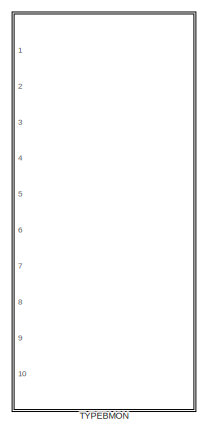
[diagram: root canvas - part 1/2, top right region]
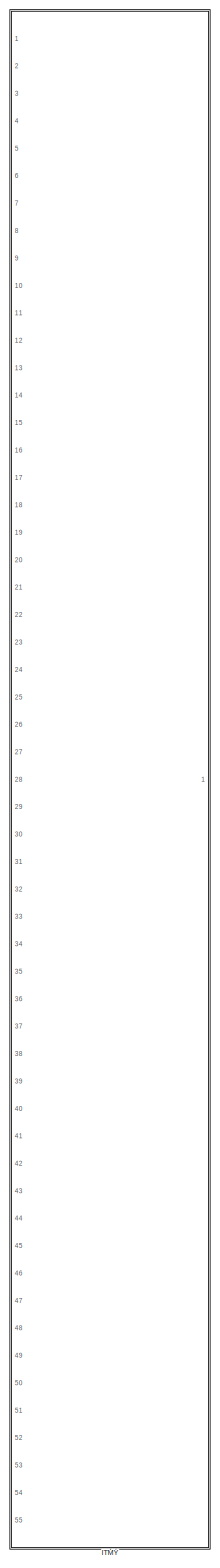
[diagram: root canvas - part 2/2, left side, full height]
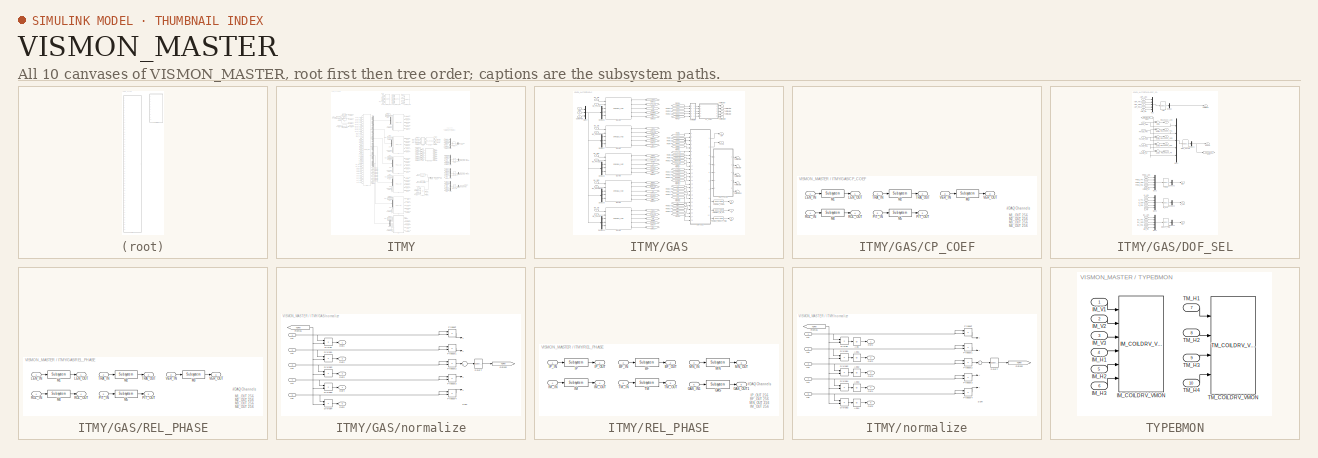
[diagram: thumbnail index - all 10 canvases of the model, root first then tree order]
MODEL VISMON_MASTER
KIND library
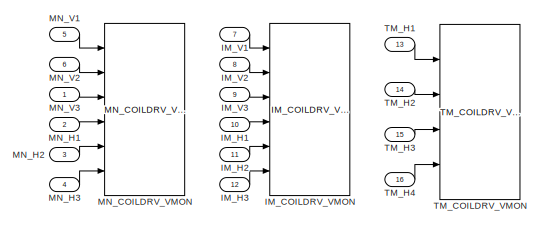
[diagram: ITMY - part 1/6, top center region]
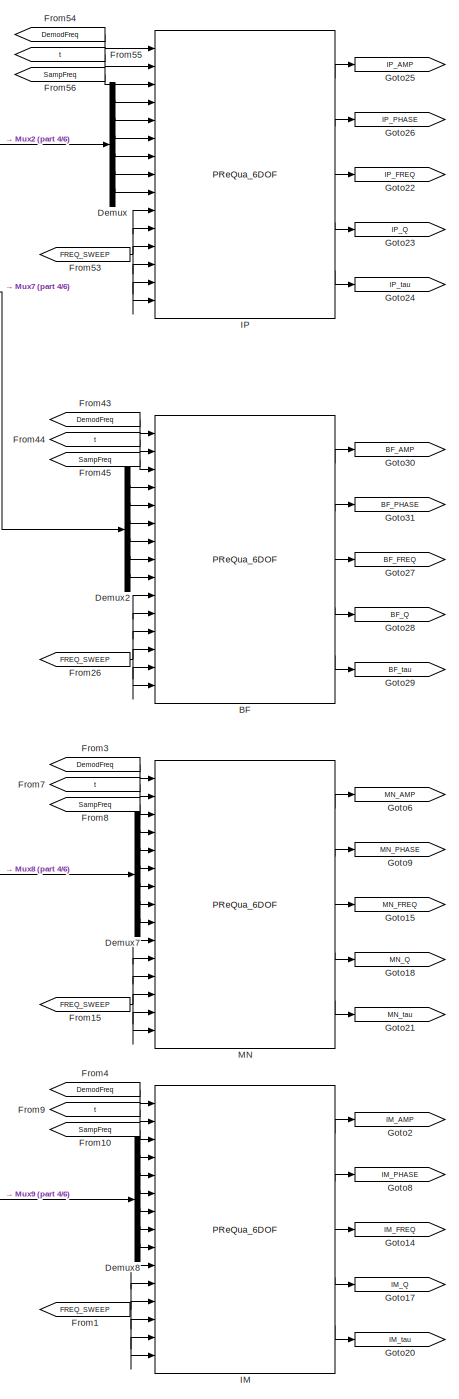
[diagram: ITMY - part 2/6, central region]
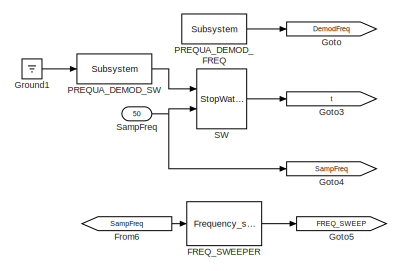
[diagram: ITMY - part 3/6, top left region]
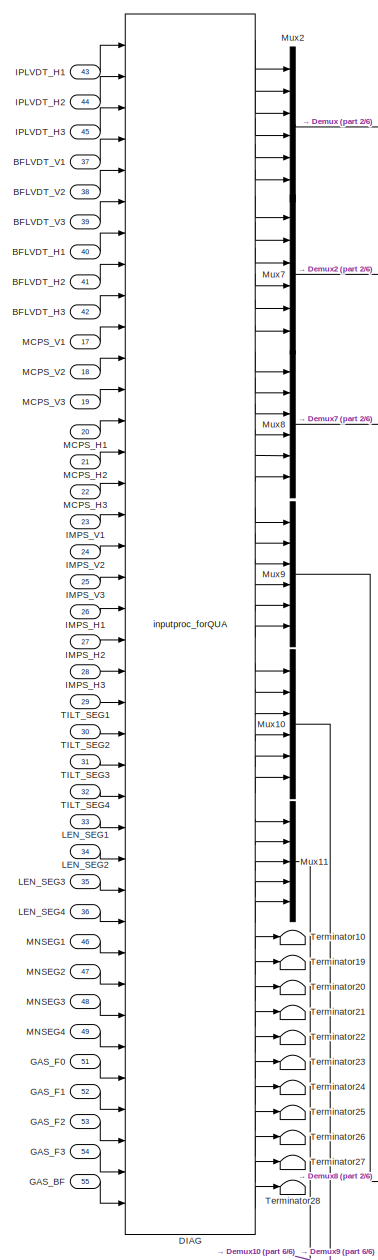
[diagram: ITMY - part 4/6, middle left region]
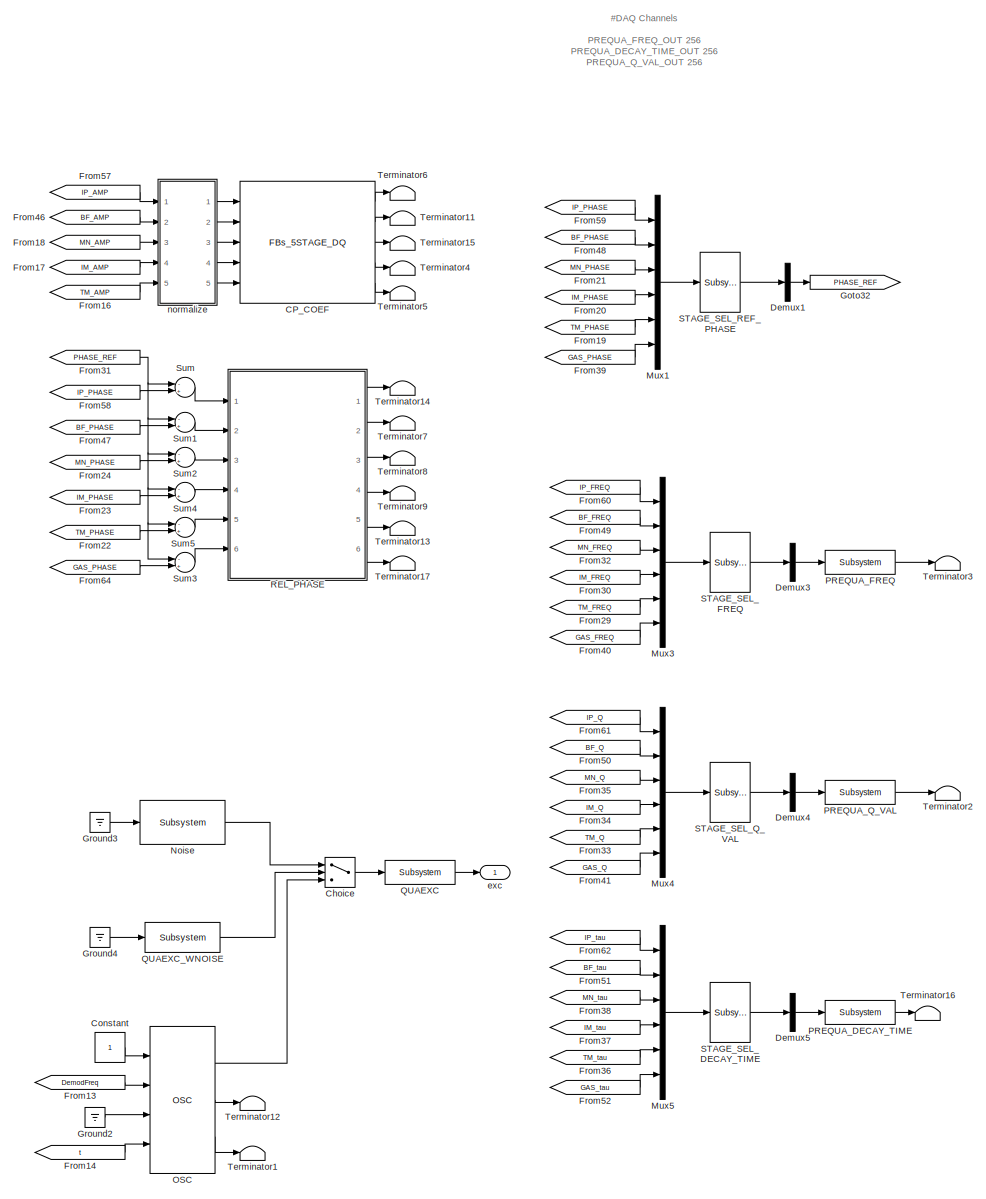
[diagram: ITMY - part 5/6, middle right region]
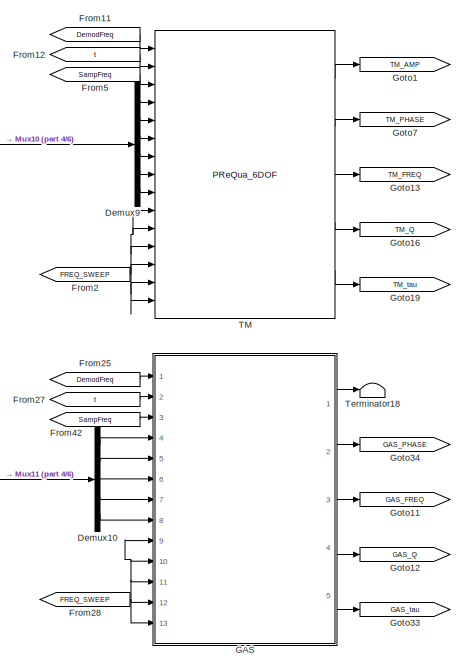
[diagram: ITMY - part 6/6, bottom center region]
BLOCK [SubSystem] ITMY
  Ports = [55, 1]
  RequestExecContextInheritance = off
  SID = 1765
  Variant = off
BLOCK [Reference] ITMY/BF  REF=VIS_LIB/PReQua_6DOF
  Ports = [15, 5]
  SID = 1821
  SourceBlock = VIS_LIB/PReQua_6DOF
  SourceType = SubSystem
BLOCK [Inport] ITMY/BFLVDT_H1
  IconDisplay = Port number
  Port = 40
  SID = 1805
BLOCK [Inport] ITMY/BFLVDT_H2
  IconDisplay = Port number
  Port = 41
  SID = 1806
BLOCK [Inport] ITMY/BFLVDT_H3
  IconDisplay = Port number
  Port = 42
  SID = 1807
BLOCK [Inport] ITMY/BFLVDT_V1
  IconDisplay = Port number
  Port = 37
  SID = 1802
BLOCK [Inport] ITMY/BFLVDT_V2
  IconDisplay = Port number
  Port = 38
  SID = 1803
BLOCK [Inport] ITMY/BFLVDT_V3
  IconDisplay = Port number
  Port = 39
  SID = 1804
BLOCK [Reference] ITMY/CP_COEF  REF=VIS_LIB/UTILs/FBs_5STAGE_DQ
  Ports = [5, 5]
  SID = 1822
  SourceBlock = VIS_LIB/UTILs/FBs_5STAGE_DQ
  SourceType = SubSystem
BLOCK [Switch] ITMY/Choice
  Criteria = u2 ~= 0
  InputSameDT = off
  SID = 1823
  SaturateOnIntegerOverflow = off
BLOCK [Constant] ITMY/Constant
  SID = 1824
BLOCK [Reference] ITMY/DIAG  REF=VIS_LIB/MODAL/inputproc_forQUA
  Ports = [38, 46]
  SID = 1825
  SourceBlock = VIS_LIB/MODAL/inputproc_forQUA
  SourceType = SubSystem
BLOCK [Demux] ITMY/Demux
  DisplayOption = bar
  Outputs = 6
  Ports = [1, 6]
  SID = 1826
BLOCK [Demux] ITMY/Demux1
  DisplayOption = bar
  Outputs = 1
  Ports = [1, 1]
  SID = 1827
BLOCK [Demux] ITMY/Demux10
  DisplayOption = bar
  Outputs = 5
  Ports = [1, 5]
  SID = 1828
BLOCK [Demux] ITMY/Demux2
  DisplayOption = bar
  Outputs = 6
  Ports = [1, 6]
  SID = 1829
BLOCK [Demux] ITMY/Demux3
  DisplayOption = bar
  Outputs = 1
  Ports = [1, 1]
  SID = 1830
BLOCK [Demux] ITMY/Demux4
  DisplayOption = bar
  Outputs = 1
  Ports = [1, 1]
  SID = 1831
BLOCK [Demux] ITMY/Demux5
  DisplayOption = bar
  Outputs = 1
  Ports = [1, 1]
  SID = 1832
BLOCK [Demux] ITMY/Demux7
  DisplayOption = bar
  Outputs = 6
  Ports = [1, 6]
  SID = 1833
BLOCK [Demux] ITMY/Demux8
  DisplayOption = bar
  Outputs = 6
  Ports = [1, 6]
  SID = 1834
BLOCK [Demux] ITMY/Demux9
  DisplayOption = bar
  Outputs = 6
  Ports = [1, 6]
  SID = 1835
BLOCK [Reference] ITMY/FREQ_SWEEPER  REF=KAGRA_UTIL/Frequency_sweeper
  Ports = [1, 1]
  SID = 1836
  SourceBlock = KAGRA_UTIL/Frequency_sweeper
  SourceType = SubSystem
BLOCK [From] ITMY/From1
  GotoTag = FREQ_SWEEP
  SID = 1837
BLOCK [From] ITMY/From10
  GotoTag = SampFreq
  SID = 1838
BLOCK [From] ITMY/From11
  GotoTag = DemodFreq
  SID = 1839
BLOCK [From] ITMY/From12
  GotoTag = t
  SID = 1840
BLOCK [From] ITMY/From13
  GotoTag = DemodFreq
  SID = 1841
BLOCK [From] ITMY/From14
  GotoTag = t
  SID = 1842
BLOCK [From] ITMY/From15
  GotoTag = FREQ_SWEEP
  SID = 1843
BLOCK [From] ITMY/From16
  GotoTag = TM_AMP
  SID = 1844
BLOCK [From] ITMY/From17
  GotoTag = IM_AMP
  SID = 1845
BLOCK [From] ITMY/From18
  GotoTag = MN_AMP
  SID = 1846
BLOCK [From] ITMY/From19
  GotoTag = TM_PHASE
  SID = 1847
BLOCK [From] ITMY/From2
  GotoTag = FREQ_SWEEP
  SID = 1848
BLOCK [From] ITMY/From20
  GotoTag = IM_PHASE
  SID = 1849
BLOCK [From] ITMY/From21
  GotoTag = MN_PHASE
  SID = 1850
BLOCK [From] ITMY/From22
  GotoTag = TM_PHASE
  SID = 1851
BLOCK [From] ITMY/From23
  GotoTag = IM_PHASE
  SID = 1852
BLOCK [From] ITMY/From24
  GotoTag = MN_PHASE
  SID = 1853
BLOCK [From] ITMY/From25
  GotoTag = DemodFreq
  SID = 1854
BLOCK [From] ITMY/From26
  GotoTag = FREQ_SWEEP
  SID = 1855
BLOCK [From] ITMY/From27
  GotoTag = t
  SID = 1856
BLOCK [From] ITMY/From28
  GotoTag = FREQ_SWEEP
  SID = 1857
BLOCK [From] ITMY/From29
  GotoTag = TM_FREQ
  SID = 1858
BLOCK [From] ITMY/From3
  GotoTag = DemodFreq
  SID = 1859
BLOCK [From] ITMY/From30
  GotoTag = IM_FREQ
  SID = 1860
BLOCK [From] ITMY/From31
  GotoTag = PHASE_REF
  SID = 1861
BLOCK [From] ITMY/From32
  GotoTag = MN_FREQ
  SID = 1862
BLOCK [From] ITMY/From33
  GotoTag = TM_Q
  SID = 1863
BLOCK [From] ITMY/From34
  GotoTag = IM_Q
  SID = 1864
BLOCK [From] ITMY/From35
  GotoTag = MN_Q
  SID = 1865
BLOCK [From] ITMY/From36
  GotoTag = TM_tau
  SID = 1866
BLOCK [From] ITMY/From37
  GotoTag = IM_tau
  SID = 1867
BLOCK [From] ITMY/From38
  GotoTag = MN_tau
  SID = 1868
BLOCK [From] ITMY/From39
  GotoTag = GAS_PHASE
  SID = 1869
BLOCK [From] ITMY/From4
  GotoTag = DemodFreq
  SID = 1870
BLOCK [From] ITMY/From40
  GotoTag = GAS_FREQ
  SID = 1871
BLOCK [From] ITMY/From41
  GotoTag = GAS_Q
  SID = 1872
BLOCK [From] ITMY/From42
  GotoTag = SampFreq
  SID = 1873
BLOCK [From] ITMY/From43
  GotoTag = DemodFreq
  SID = 1874
BLOCK [From] ITMY/From44
  GotoTag = t
  SID = 1875
BLOCK [From] ITMY/From45
  GotoTag = SampFreq
  SID = 1876
BLOCK [From] ITMY/From46
  GotoTag = BF_AMP
  SID = 1877
BLOCK [From] ITMY/From47
  GotoTag = BF_PHASE
  SID = 1878
BLOCK [From] ITMY/From48
  GotoTag = BF_PHASE
  SID = 1879
BLOCK [From] ITMY/From49
  GotoTag = BF_FREQ
  SID = 1880
BLOCK [From] ITMY/From5
  GotoTag = SampFreq
  SID = 1881
BLOCK [From] ITMY/From50
  GotoTag = BF_Q
  SID = 1882
BLOCK [From] ITMY/From51
  GotoTag = BF_tau
  SID = 1883
BLOCK [From] ITMY/From52
  GotoTag = GAS_tau
  SID = 1884
BLOCK [From] ITMY/From53
  GotoTag = FREQ_SWEEP
  SID = 1885
BLOCK [From] ITMY/From54
  GotoTag = DemodFreq
  SID = 1886
BLOCK [From] ITMY/From55
  GotoTag = t
  SID = 1887
BLOCK [From] ITMY/From56
  GotoTag = SampFreq
  SID = 1888
BLOCK [From] ITMY/From57
  GotoTag = IP_AMP
  SID = 1889
BLOCK [From] ITMY/From58
  GotoTag = IP_PHASE
  SID = 1890
BLOCK [From] ITMY/From59
  GotoTag = IP_PHASE
  SID = 1891
BLOCK [From] ITMY/From6
  GotoTag = SampFreq
  SID = 1892
BLOCK [From] ITMY/From60
  GotoTag = IP_FREQ
  SID = 1893
BLOCK [From] ITMY/From61
  GotoTag = IP_Q
  SID = 1894
BLOCK [From] ITMY/From62
  GotoTag = IP_tau
  SID = 1895
BLOCK [From] ITMY/From64
  GotoTag = GAS_PHASE
  SID = 1896
BLOCK [From] ITMY/From7
  GotoTag = t
  SID = 1897
BLOCK [From] ITMY/From8
  GotoTag = SampFreq
  SID = 1898
BLOCK [From] ITMY/From9
  GotoTag = t
  SID = 1899
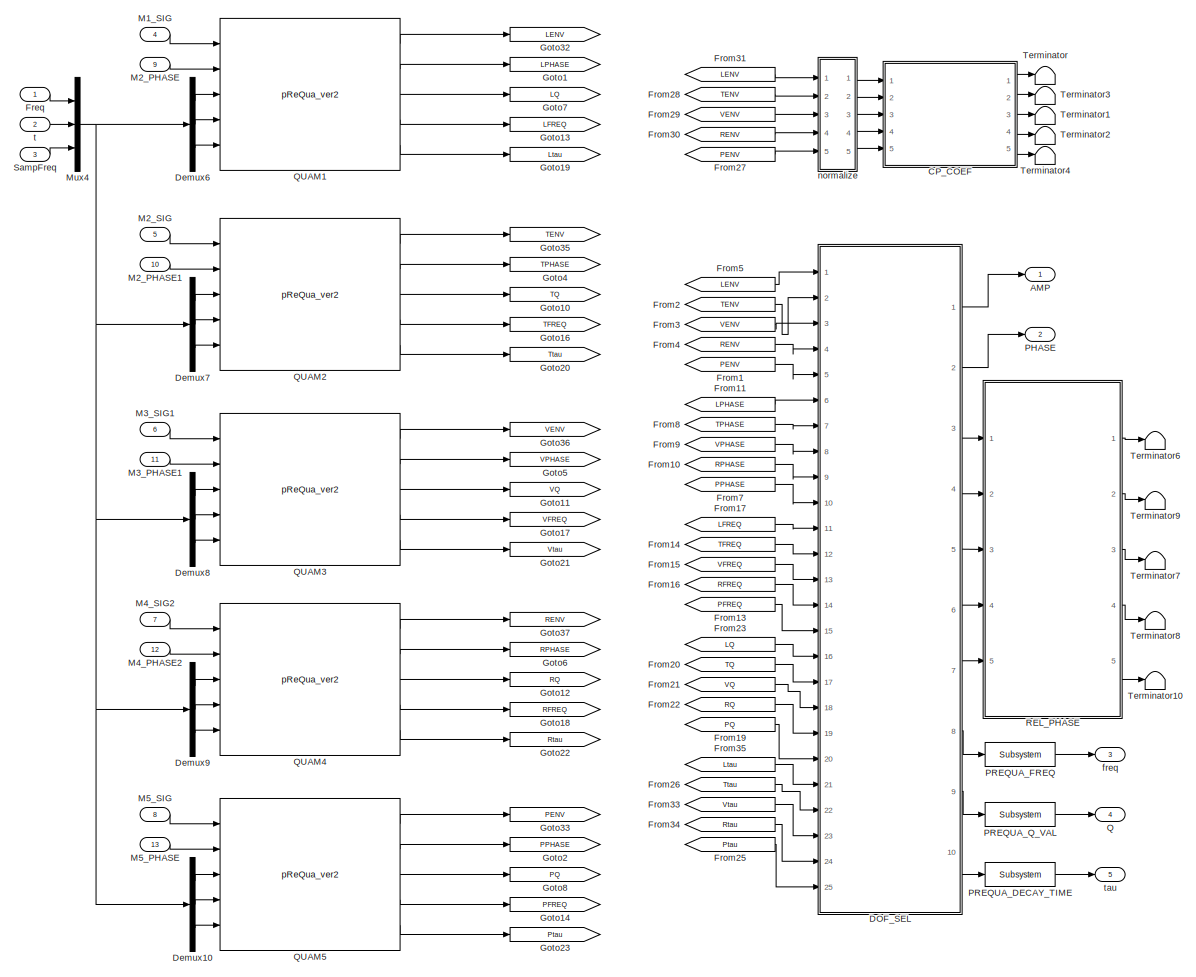
[diagram: ITMY/GAS - part 1/1, most of the canvas]
BLOCK [SubSystem] ITMY/GAS
  Ports = [13, 5]
  RequestExecContextInheritance = off
  SID = 1900
  Variant = off
BLOCK [Outport] ITMY/GAS/AMP
  IconDisplay = Port number
  SID = 2110
BLOCK [SubSystem] ITMY/GAS/CP_COEF
  Ports = [5, 5]
  RequestExecContextInheritance = off
  SID = 1914
  Variant = off
BLOCK [Inport] ITMY/GAS/CP_COEF/LEN_IN
  IconDisplay = Port number
  SID = 1915
BLOCK [Outport] ITMY/GAS/CP_COEF/LEN_OUT
  IconDisplay = Port number
  SID = 1925
BLOCK [Reference] ITMY/GAS/CP_COEF/M1  REF=cdsFilt/Subsystem
  AttributesFormatString = %<Tag>
  Description = Purpose:                                                                                                                                                                                                                                  \nStandard CDS IIR filter module.                                                                                                                                     ...<+1302ch>  <repeated x23 — deduplicated; at blocks: M1, M2, M3, M4, M5, PREQUA_DECAY_TIME, PREQUA_FREQ, PREQUA_Q_VAL, QUAEXC, BF, GAS, IM, IP, MN, TM>
  Ports = [1, 1]
  SID = 1920
  SourceBlock = cdsFilt/Subsystem
  SourceType = SubSystem
  Tag = cdsFilt
BLOCK [Reference] ITMY/GAS/CP_COEF/M2  REF=cdsFilt/Subsystem
  AttributesFormatString = %<Tag>
  Ports = [1, 1]
  SID = 1921
  SourceBlock = cdsFilt/Subsystem
  SourceType = SubSystem
  Tag = cdsFilt
BLOCK [Reference] ITMY/GAS/CP_COEF/M3  REF=cdsFilt/Subsystem
  AttributesFormatString = %<Tag>
  Ports = [1, 1]
  SID = 1922
  SourceBlock = cdsFilt/Subsystem
  SourceType = SubSystem
  Tag = cdsFilt
BLOCK [Reference] ITMY/GAS/CP_COEF/M4  REF=cdsFilt/Subsystem
  AttributesFormatString = %<Tag>
  Ports = [1, 1]
  SID = 1923
  SourceBlock = cdsFilt/Subsystem
  SourceType = SubSystem
  Tag = cdsFilt
BLOCK [Reference] ITMY/GAS/CP_COEF/M5  REF=cdsFilt/Subsystem
  AttributesFormatString = %<Tag>
  Ports = [1, 1]
  SID = 1924
  SourceBlock = cdsFilt/Subsystem
  SourceType = SubSystem
  Tag = cdsFilt
BLOCK [Inport] ITMY/GAS/CP_COEF/PIT_IN
  IconDisplay = Port number
  Port = 5
  SID = 1919
BLOCK [Outport] ITMY/GAS/CP_COEF/PIT_OUT
  IconDisplay = Port number
  Port = 5
  SID = 1929
BLOCK [Inport] ITMY/GAS/CP_COEF/ROL_IN
  IconDisplay = Port number
  Port = 4
  SID = 1918
BLOCK [Outport] ITMY/GAS/CP_COEF/ROL_OUT
  IconDisplay = Port number
  Port = 4
  SID = 1928
BLOCK [Inport] ITMY/GAS/CP_COEF/TRA_IN
  IconDisplay = Port number
  Port = 2
  SID = 1916
BLOCK [Outport] ITMY/GAS/CP_COEF/TRA_OUT
  IconDisplay = Port number
  Port = 2
  SID = 1926
BLOCK [Inport] ITMY/GAS/CP_COEF/VER_IN
  IconDisplay = Port number
  Port = 3
  SID = 1917
BLOCK [Outport] ITMY/GAS/CP_COEF/VER_OUT
  IconDisplay = Port number
  Port = 3
  SID = 1927
BLOCK [SubSystem] ITMY/GAS/DOF_SEL
  Ports = [25, 10]
  RequestExecContextInheritance = off
  SID = 1931
  Variant = off
BLOCK [Reference] ITMY/GAS/DOF_SEL/AMP  REF=cdsMuxMatrix/Subsystem
  AttributesFormatString = %<Tag>
  Description = Any size matrix. Inputs and outputs must be connected using Mux and Demux parts.
  Ports = [1, 1]
  SID = 1957
  SourceBlock = cdsMuxMatrix/Subsystem
  SourceType = SubSystem
  Tag = cdsMuxMatrix
BLOCK [Inport] ITMY/GAS/DOF_SEL/AMP_LEN
  IconDisplay = Port number
  SID = 1932
BLOCK [Inport] ITMY/GAS/DOF_SEL/AMP_PIT
  IconDisplay = Port number
  Port = 5
  SID = 1936
BLOCK [Inport] ITMY/GAS/DOF_SEL/AMP_ROL
  IconDisplay = Port number
  Port = 4
  SID = 1935
BLOCK [Inport] ITMY/GAS/DOF_SEL/AMP_TRA
  IconDisplay = Port number
  Port = 2
  SID = 1933
BLOCK [Inport] ITMY/GAS/DOF_SEL/AMP_VER
  IconDisplay = Port number
  Port = 3
  SID = 1934
BLOCK [Reference] ITMY/GAS/DOF_SEL/DECAY_TIME  REF=cdsMuxMatrix/Subsystem
  AttributesFormatString = %<Tag>
  Description = Any size matrix. Inputs and outputs must be connected using Mux and Demux parts.
  Ports = [1, 1]
  SID = 1958
  SourceBlock = cdsMuxMatrix/Subsystem
  SourceType = SubSystem
  Tag = cdsMuxMatrix
BLOCK [Demux] ITMY/GAS/DOF_SEL/Demux
  DisplayOption = bar
  Outputs = 1
  Ports = [1, 1]
  SID = 1959
BLOCK [Demux] ITMY/GAS/DOF_SEL/Demux1
  DisplayOption = bar
  Outputs = 1
  Ports = [1, 1]
  SID = 1960
BLOCK [Demux] ITMY/GAS/DOF_SEL/Demux2
  DisplayOption = bar
  Outputs = 1
  Ports = [1, 1]
  SID = 1961
BLOCK [Demux] ITMY/GAS/DOF_SEL/Demux3
  DisplayOption = bar
  Outputs = 1
  Ports = [1, 1]
  SID = 1962
BLOCK [Demux] ITMY/GAS/DOF_SEL/Demux4
  DisplayOption = bar
  Outputs = 1
  Ports = [1, 1]
  SID = 1963
BLOCK [Reference] ITMY/GAS/DOF_SEL/FREQ  REF=cdsMuxMatrix/Subsystem
  AttributesFormatString = %<Tag>
  Description = Any size matrix. Inputs and outputs must be connected using Mux and Demux parts.
  Ports = [1, 1]
  SID = 1964
  SourceBlock = cdsMuxMatrix/Subsystem
  SourceType = SubSystem
  Tag = cdsMuxMatrix
BLOCK [Inport] ITMY/GAS/DOF_SEL/FREQ_LEN
  IconDisplay = Port number
  Port = 11
  SID = 1942
BLOCK [Inport] ITMY/GAS/DOF_SEL/FREQ_PIT
  IconDisplay = Port number
  Port = 15
  SID = 1946
BLOCK [Inport] ITMY/GAS/DOF_SEL/FREQ_ROL
  IconDisplay = Port number
  Port = 14
  SID = 1945
BLOCK [Inport] ITMY/GAS/DOF_SEL/FREQ_TRA
  IconDisplay = Port number
  Port = 12
  SID = 1943
BLOCK [Inport] ITMY/GAS/DOF_SEL/FREQ_VER
  IconDisplay = Port number
  Port = 13
  SID = 1944
BLOCK [From] ITMY/GAS/DOF_SEL/From
  GotoTag = REFPHASE
  SID = 1965
BLOCK [Goto] ITMY/GAS/DOF_SEL/Goto7
  GotoTag = REFPHASE
  SID = 1966
BLOCK [Mux] ITMY/GAS/DOF_SEL/Mux
  DisplayOption = bar
  Inputs = 5
  Ports = [5, 1]
  SID = 1967
BLOCK [Mux] ITMY/GAS/DOF_SEL/Mux1
  DisplayOption = bar
  Inputs = 5
  Ports = [5, 1]
  SID = 1968
BLOCK [Mux] ITMY/GAS/DOF_SEL/Mux2
  DisplayOption = bar
  Inputs = 5
  Ports = [5, 1]
  SID = 1969
BLOCK [Mux] ITMY/GAS/DOF_SEL/Mux3
  DisplayOption = bar
  Inputs = 5
  Ports = [5, 1]
  SID = 1970
BLOCK [Mux] ITMY/GAS/DOF_SEL/Mux4
  DisplayOption = bar
  Inputs = 5
  Ports = [5, 1]
  SID = 1971
BLOCK [Inport] ITMY/GAS/DOF_SEL/PHASE_PIT
  IconDisplay = Port number
  Port = 10
  SID = 1941
BLOCK [Inport] ITMY/GAS/DOF_SEL/PHASE_ROL
  IconDisplay = Port number
  Port = 9
  SID = 1940
BLOCK [Inport] ITMY/GAS/DOF_SEL/PHASE_TRA
  IconDisplay = Port number
  Port = 7
  SID = 1938
BLOCK [Inport] ITMY/GAS/DOF_SEL/PHASE_VER
  IconDisplay = Port number
  Port = 8
  SID = 1939
BLOCK [Inport] ITMY/GAS/DOF_SEL/Phase_LEN
  IconDisplay = Port number
  Port = 6
  SID = 1937
BLOCK [Inport] ITMY/GAS/DOF_SEL/Q_LEN
  IconDisplay = Port number
  Port = 16
  SID = 1947
BLOCK [Inport] ITMY/GAS/DOF_SEL/Q_PIT
  IconDisplay = Port number
  Port = 20
  SID = 1951
BLOCK [Inport] ITMY/GAS/DOF_SEL/Q_ROL
  IconDisplay = Port number
  Port = 19
  SID = 1950
BLOCK [Inport] ITMY/GAS/DOF_SEL/Q_TRA
  IconDisplay = Port number
  Port = 17
  SID = 1948
BLOCK [Reference] ITMY/GAS/DOF_SEL/Q_VAL  REF=cdsMuxMatrix/Subsystem
  AttributesFormatString = %<Tag>
  Description = Any size matrix. Inputs and outputs must be connected using Mux and Demux parts.
  Ports = [1, 1]
  SID = 1972
  SourceBlock = cdsMuxMatrix/Subsystem
  SourceType = SubSystem
  Tag = cdsMuxMatrix
BLOCK [Inport] ITMY/GAS/DOF_SEL/Q_VER
  IconDisplay = Port number
  Port = 18
  SID = 1949
BLOCK [Reference] ITMY/GAS/DOF_SEL/REF_PHASE  REF=cdsMuxMatrix/Subsystem
  AttributesFormatString = %<Tag>
  Description = Any size matrix. Inputs and outputs must be connected using Mux and Demux parts.
  Ports = [1, 1]
  SID = 1973
  SourceBlock = cdsMuxMatrix/Subsystem
  SourceType = SubSystem
  Tag = cdsMuxMatrix
BLOCK [Outport] ITMY/GAS/DOF_SEL/RELphase_LEN
  IconDisplay = Port number
  Port = 3
  SID = 1981
BLOCK [Outport] ITMY/GAS/DOF_SEL/RELphase_PIT
  IconDisplay = Port number
  Port = 7
  SID = 1985
BLOCK [Outport] ITMY/GAS/DOF_SEL/RELphase_ROL
  IconDisplay = Port number
  Port = 6
  SID = 1984
BLOCK [Outport] ITMY/GAS/DOF_SEL/RELphase_TRA
  IconDisplay = Port number
  Port = 4
  SID = 1982
BLOCK [Outport] ITMY/GAS/DOF_SEL/RELphase_VER
  IconDisplay = Port number
  Port = 5
  SID = 1983
BLOCK [Sum] ITMY/GAS/DOF_SEL/Sum
  InputSameDT = off
  Inputs = -+
  OutDataTypeStr = Inherit: Inherit via internal rule
  Ports = [2, 1]
  SID = 1974
  SaturateOnIntegerOverflow = off
BLOCK [Sum] ITMY/GAS/DOF_SEL/Sum1
  InputSameDT = off
  Inputs = -+
  OutDataTypeStr = Inherit: Inherit via internal rule
  Ports = [2, 1]
  SID = 1975
  SaturateOnIntegerOverflow = off
BLOCK [Sum] ITMY/GAS/DOF_SEL/Sum2
  InputSameDT = off
  Inputs = -+
  OutDataTypeStr = Inherit: Inherit via internal rule
  Ports = [2, 1]
  SID = 1976
  SaturateOnIntegerOverflow = off
BLOCK [Sum] ITMY/GAS/DOF_SEL/Sum3
  InputSameDT = off
  Inputs = -+
  OutDataTypeStr = Inherit: Inherit via internal rule
  Ports = [2, 1]
  SID = 1977
  SaturateOnIntegerOverflow = off
BLOCK [Sum] ITMY/GAS/DOF_SEL/Sum4
  InputSameDT = off
  Inputs = -+
  OutDataTypeStr = Inherit: Inherit via internal rule
  Ports = [2, 1]
  SID = 1978
  SaturateOnIntegerOverflow = off
BLOCK [Outport] ITMY/GAS/DOF_SEL/amplitude
  IconDisplay = Port number
  SID = 1979
BLOCK [Outport] ITMY/GAS/DOF_SEL/freq
  IconDisplay = Port number
  Port = 8
  SID = 1986
BLOCK [Outport] ITMY/GAS/DOF_SEL/phase
  IconDisplay = Port number
  Port = 2
  SID = 1980
BLOCK [Outport] ITMY/GAS/DOF_SEL/q_val
  IconDisplay = Port number
  Port = 9
  SID = 1987
BLOCK [Outport] ITMY/GAS/DOF_SEL/tau
  IconDisplay = Port number
  Port = 10
  SID = 1988
BLOCK [Inport] ITMY/GAS/DOF_SEL/tau_LEN
  IconDisplay = Port number
  Port = 21
  SID = 1952
BLOCK [Inport] ITMY/GAS/DOF_SEL/tau_PIT
  IconDisplay = Port number
  Port = 25
  SID = 1956
BLOCK [Inport] ITMY/GAS/DOF_SEL/tau_ROL
  IconDisplay = Port number
  Port = 24
  SID = 1955
BLOCK [Inport] ITMY/GAS/DOF_SEL/tau_TRA
  IconDisplay = Port number
  Port = 22
  SID = 1953
BLOCK [Inport] ITMY/GAS/DOF_SEL/tau_VER
  IconDisplay = Port number
  Port = 23
  SID = 1954
BLOCK [Demux] ITMY/GAS/Demux10
  DisplayOption = bar
  Outputs = 3
  Ports = [1, 3]
  SID = 1989
BLOCK [Demux] ITMY/GAS/Demux6
  DisplayOption = bar
  Outputs = 3
  Ports = [1, 3]
  SID = 1990
BLOCK [Demux] ITMY/GAS/Demux7
  DisplayOption = bar
  Outputs = 3
  Ports = [1, 3]
  SID = 1991
BLOCK [Demux] ITMY/GAS/Demux8
  DisplayOption = bar
  Outputs = 3
  Ports = [1, 3]
  SID = 1992
BLOCK [Demux] ITMY/GAS/Demux9
  DisplayOption = bar
  Outputs = 3
  Ports = [1, 3]
  SID = 1993
BLOCK [Inport] ITMY/GAS/Freq
  IconDisplay = Port number
  SID = 1901
BLOCK [From] ITMY/GAS/From1
  GotoTag = PENV
  SID = 1994
BLOCK [From] ITMY/GAS/From10
  GotoTag = RPHASE
  SID = 1995
BLOCK [From] ITMY/GAS/From11
  GotoTag = LPHASE
  SID = 1996
BLOCK [From] ITMY/GAS/From13
  GotoTag = PFREQ
  SID = 1997
BLOCK [From] ITMY/GAS/From14
  GotoTag = TFREQ
  SID = 1998
BLOCK [From] ITMY/GAS/From15
  GotoTag = VFREQ
  SID = 1999
BLOCK [From] ITMY/GAS/From16
  GotoTag = RFREQ
  SID = 2000
BLOCK [From] ITMY/GAS/From17
  GotoTag = LFREQ
  SID = 2001
BLOCK [From] ITMY/GAS/From19
  GotoTag = PQ
  SID = 2002
BLOCK [From] ITMY/GAS/From2
  GotoTag = TENV
  SID = 2003
BLOCK [From] ITMY/GAS/From20
  GotoTag = TQ
  SID = 2004
BLOCK [From] ITMY/GAS/From21
  GotoTag = VQ
  SID = 2005
BLOCK [From] ITMY/GAS/From22
  GotoTag = RQ
  SID = 2006
BLOCK [From] ITMY/GAS/From23
  GotoTag = LQ
  SID = 2007
BLOCK [From] ITMY/GAS/From25
  GotoTag = Ptau
  SID = 2008
BLOCK [From] ITMY/GAS/From26
  GotoTag = Ttau
  SID = 2009
BLOCK [From] ITMY/GAS/From27
  GotoTag = PENV
  SID = 2010
BLOCK [From] ITMY/GAS/From28
  GotoTag = TENV
  SID = 2011
BLOCK [From] ITMY/GAS/From29
  GotoTag = VENV
  SID = 2012
BLOCK [From] ITMY/GAS/From3
  GotoTag = VENV
  SID = 2013
BLOCK [From] ITMY/GAS/From30
  GotoTag = RENV
  SID = 2014
BLOCK [From] ITMY/GAS/From31
  GotoTag = LENV
  SID = 2015
BLOCK [From] ITMY/GAS/From33
  GotoTag = Vtau
  SID = 2016
BLOCK [From] ITMY/GAS/From34
  GotoTag = Rtau
  SID = 2017
BLOCK [From] ITMY/GAS/From35
  GotoTag = Ltau
  SID = 2018
BLOCK [From] ITMY/GAS/From4
  GotoTag = RENV
  SID = 2019
BLOCK [From] ITMY/GAS/From5
  GotoTag = LENV
  SID = 2020
BLOCK [From] ITMY/GAS/From7
  GotoTag = PPHASE
  SID = 2021
BLOCK [From] ITMY/GAS/From8
  GotoTag = TPHASE
  SID = 2022
BLOCK [From] ITMY/GAS/From9
  GotoTag = VPHASE
  SID = 2023
BLOCK [Goto] ITMY/GAS/Goto1
  GotoTag = LPHASE
  SID = 2024
BLOCK [Goto] ITMY/GAS/Goto10
  GotoTag = TQ
  SID = 2025
BLOCK [Goto] ITMY/GAS/Goto11
  GotoTag = VQ
  SID = 2026
BLOCK [Goto] ITMY/GAS/Goto12
  GotoTag = RQ
  SID = 2027
BLOCK [Goto] ITMY/GAS/Goto13
  GotoTag = LFREQ
  SID = 2028
BLOCK [Goto] ITMY/GAS/Goto14
  GotoTag = PFREQ
  SID = 2029
BLOCK [Goto] ITMY/GAS/Goto16
  GotoTag = TFREQ
  SID = 2030
BLOCK [Goto] ITMY/GAS/Goto17
  GotoTag = VFREQ
  SID = 2031
BLOCK [Goto] ITMY/GAS/Goto18
  GotoTag = RFREQ
  SID = 2032
BLOCK [Goto] ITMY/GAS/Goto19
  GotoTag = Ltau
  SID = 2033
BLOCK [Goto] ITMY/GAS/Goto2
  GotoTag = PPHASE
  SID = 2034
BLOCK [Goto] ITMY/GAS/Goto20
  GotoTag = Ttau
  SID = 2035
BLOCK [Goto] ITMY/GAS/Goto21
  GotoTag = Vtau
  SID = 2036
BLOCK [Goto] ITMY/GAS/Goto22
  GotoTag = Rtau
  SID = 2037
BLOCK [Goto] ITMY/GAS/Goto23
  GotoTag = Ptau
  SID = 2038
BLOCK [Goto] ITMY/GAS/Goto32
  GotoTag = LENV
  SID = 2039
BLOCK [Goto] ITMY/GAS/Goto33
  GotoTag = PENV
  SID = 2040
BLOCK [Goto] ITMY/GAS/Goto35
  GotoTag = TENV
  SID = 2041
BLOCK [Goto] ITMY/GAS/Goto36
  GotoTag = VENV
  SID = 2042
BLOCK [Goto] ITMY/GAS/Goto37
  GotoTag = RENV
  SID = 2043
BLOCK [Goto] ITMY/GAS/Goto4
  GotoTag = TPHASE
  SID = 2044
BLOCK [Goto] ITMY/GAS/Goto5
  GotoTag = VPHASE
  SID = 2045
BLOCK [Goto] ITMY/GAS/Goto6
  GotoTag = RPHASE
  SID = 2046
BLOCK [Goto] ITMY/GAS/Goto7
  GotoTag = LQ
  SID = 2047
BLOCK [Goto] ITMY/GAS/Goto8
  GotoTag = PQ
  SID = 2048
BLOCK [Inport] ITMY/GAS/M1_SIG
  IconDisplay = Port number
  Port = 4
  SID = 1904
BLOCK [Inport] ITMY/GAS/M2_PHASE
  IconDisplay = Port number
  Port = 9
  SID = 1909
BLOCK [Inport] ITMY/GAS/M2_PHASE1
  IconDisplay = Port number
  Port = 10
  SID = 1910
BLOCK [Inport] ITMY/GAS/M2_SIG
  IconDisplay = Port number
  Port = 5
  SID = 1905
BLOCK [Inport] ITMY/GAS/M3_PHASE1
  IconDisplay = Port number
  Port = 11
  SID = 1911
BLOCK [Inport] ITMY/GAS/M3_SIG1
  IconDisplay = Port number
  Port = 6
  SID = 1906
BLOCK [Inport] ITMY/GAS/M4_PHASE2
  IconDisplay = Port number
  Port = 12
  SID = 1912
BLOCK [Inport] ITMY/GAS/M4_SIG2
  IconDisplay = Port number
  Port = 7
  SID = 1907
BLOCK [Inport] ITMY/GAS/M5_PHASE
  IconDisplay = Port number
  Port = 13
  SID = 1913
BLOCK [Inport] ITMY/GAS/M5_SIG
  IconDisplay = Port number
  Port = 8
  SID = 1908
BLOCK [Mux] ITMY/GAS/Mux4
  DisplayOption = bar
  Inputs = 3
  Ports = [3, 1]
  SID = 2049
BLOCK [Outport] ITMY/GAS/PHASE
  IconDisplay = Port number
  Port = 2
  SID = 2111
BLOCK [Reference] ITMY/GAS/PREQUA_DECAY_TIME  REF=cdsFilt/Subsystem
  AttributesFormatString = %<Tag>
  Ports = [1, 1]
  SID = 2050
  SourceBlock = cdsFilt/Subsystem
  SourceType = SubSystem
  Tag = cdsFilt
BLOCK [Reference] ITMY/GAS/PREQUA_FREQ  REF=cdsFilt/Subsystem
  AttributesFormatString = %<Tag>
  Ports = [1, 1]
  SID = 2051
  SourceBlock = cdsFilt/Subsystem
  SourceType = SubSystem
  Tag = cdsFilt
BLOCK [Reference] ITMY/GAS/PREQUA_Q_VAL  REF=cdsFilt/Subsystem
  AttributesFormatString = %<Tag>
  Ports = [1, 1]
  SID = 2052
  SourceBlock = cdsFilt/Subsystem
  SourceType = SubSystem
  Tag = cdsFilt
BLOCK [Outport] ITMY/GAS/Q
  IconDisplay = Port number
  Port = 4
  SID = 2113
BLOCK [Reference] ITMY/GAS/QUAM1  REF=KAGRA_UTIL/pReQua_ver2
  Ports = [5, 5]
  SID = 2053
  SourceBlock = KAGRA_UTIL/pReQua_ver2
  SourceType = SubSystem
BLOCK [Reference] ITMY/GAS/QUAM2  REF=KAGRA_UTIL/pReQua_ver2
  Ports = [5, 5]
  SID = 2054
  SourceBlock = KAGRA_UTIL/pReQua_ver2
  SourceType = SubSystem
BLOCK [Reference] ITMY/GAS/QUAM3  REF=KAGRA_UTIL/pReQua_ver2
  Ports = [5, 5]
  SID = 2055
  SourceBlock = KAGRA_UTIL/pReQua_ver2
  SourceType = SubSystem
BLOCK [Reference] ITMY/GAS/QUAM4  REF=KAGRA_UTIL/pReQua_ver2
  Ports = [5, 5]
  SID = 2056
  SourceBlock = KAGRA_UTIL/pReQua_ver2
  SourceType = SubSystem
BLOCK [Reference] ITMY/GAS/QUAM5  REF=KAGRA_UTIL/pReQua_ver2
  Ports = [5, 5]
  SID = 2057
  SourceBlock = KAGRA_UTIL/pReQua_ver2
  SourceType = SubSystem
BLOCK [SubSystem] ITMY/GAS/REL_PHASE
  Ports = [5, 5]
  RequestExecContextInheritance = off
  SID = 2058
  Variant = off
BLOCK [Inport] ITMY/GAS/REL_PHASE/LEN_IN
  IconDisplay = Port number
  SID = 2059
BLOCK [Outport] ITMY/GAS/REL_PHASE/LEN_OUT
  IconDisplay = Port number
  SID = 2069
BLOCK [Reference] ITMY/GAS/REL_PHASE/M1  REF=cdsFilt/Subsystem
  AttributesFormatString = %<Tag>
  Ports = [1, 1]
  SID = 2064
  SourceBlock = cdsFilt/Subsystem
  SourceType = SubSystem
  Tag = cdsFilt
BLOCK [Reference] ITMY/GAS/REL_PHASE/M2  REF=cdsFilt/Subsystem
  AttributesFormatString = %<Tag>
  Ports = [1, 1]
  SID = 2065
  SourceBlock = cdsFilt/Subsystem
  SourceType = SubSystem
  Tag = cdsFilt
BLOCK [Reference] ITMY/GAS/REL_PHASE/M3  REF=cdsFilt/Subsystem
  AttributesFormatString = %<Tag>
  Ports = [1, 1]
  SID = 2066
  SourceBlock = cdsFilt/Subsystem
  SourceType = SubSystem
  Tag = cdsFilt
BLOCK [Reference] ITMY/GAS/REL_PHASE/M4  REF=cdsFilt/Subsystem
  AttributesFormatString = %<Tag>
  Ports = [1, 1]
  SID = 2067
  SourceBlock = cdsFilt/Subsystem
  SourceType = SubSystem
  Tag = cdsFilt
BLOCK [Reference] ITMY/GAS/REL_PHASE/M5  REF=cdsFilt/Subsystem
  AttributesFormatString = %<Tag>
  Ports = [1, 1]
  SID = 2068
  SourceBlock = cdsFilt/Subsystem
  SourceType = SubSystem
  Tag = cdsFilt
BLOCK [Inport] ITMY/GAS/REL_PHASE/PIT_IN
  IconDisplay = Port number
  Port = 5
  SID = 2063
BLOCK [Outport] ITMY/GAS/REL_PHASE/PIT_OUT
  IconDisplay = Port number
  Port = 5
  SID = 2073
BLOCK [Inport] ITMY/GAS/REL_PHASE/ROL_IN
  IconDisplay = Port number
  Port = 4
  SID = 2062
BLOCK [Outport] ITMY/GAS/REL_PHASE/ROL_OUT
  IconDisplay = Port number
  Port = 4
  SID = 2072
BLOCK [Inport] ITMY/GAS/REL_PHASE/TRA_IN
  IconDisplay = Port number
  Port = 2
  SID = 2060
BLOCK [Outport] ITMY/GAS/REL_PHASE/TRA_OUT
  IconDisplay = Port number
  Port = 2
  SID = 2070
BLOCK [Inport] ITMY/GAS/REL_PHASE/VER_IN
  IconDisplay = Port number
  Port = 3
  SID = 2061
BLOCK [Outport] ITMY/GAS/REL_PHASE/VER_OUT
  IconDisplay = Port number
  Port = 3
  SID = 2071
BLOCK [Inport] ITMY/GAS/SampFreq
  IconDisplay = Port number
  Port = 3
  SID = 1903
BLOCK [Terminator] ITMY/GAS/Terminator
  SID = 2075
BLOCK [Terminator] ITMY/GAS/Terminator1
  SID = 2076
BLOCK [Terminator] ITMY/GAS/Terminator10
  SID = 2077
BLOCK [Terminator] ITMY/GAS/Terminator2
  SID = 2078
BLOCK [Terminator] ITMY/GAS/Terminator3
  SID = 2079
BLOCK [Terminator] ITMY/GAS/Terminator4
  SID = 2080
BLOCK [Terminator] ITMY/GAS/Terminator6
  SID = 2081
BLOCK [Terminator] ITMY/GAS/Terminator7
  SID = 2082
BLOCK [Terminator] ITMY/GAS/Terminator8
  SID = 2083
BLOCK [Terminator] ITMY/GAS/Terminator9
  SID = 2084
BLOCK [Outport] ITMY/GAS/freq
  IconDisplay = Port number
  Port = 3
  SID = 2112
BLOCK [SubSystem] ITMY/GAS/normalize
  Ports = [5, 5]
  RequestExecContextInheritance = off
  SID = 2085
  Variant = off
BLOCK [Product] ITMY/GAS/normalize/Divide
  InputSameDT = off
  Inputs = */
  OutDataTypeStr = Inherit: Inherit via internal rule
  Ports = [2, 1]
  RndMeth = Floor
  SID = 2091
  SaturateOnIntegerOverflow = off
BLOCK [Product] ITMY/GAS/normalize/Divide1
  InputSameDT = off
  Inputs = */
  OutDataTypeStr = Inherit: Inherit via internal rule
  Ports = [2, 1]
  RndMeth = Floor
  SID = 2092
  SaturateOnIntegerOverflow = off
BLOCK [Product] ITMY/GAS/normalize/Divide2
  InputSameDT = off
  Inputs = */
  OutDataTypeStr = Inherit: Inherit via internal rule
  Ports = [2, 1]
  RndMeth = Floor
  SID = 2093
  SaturateOnIntegerOverflow = off
BLOCK [Product] ITMY/GAS/normalize/Divide3
  InputSameDT = off
  Inputs = */
  OutDataTypeStr = Inherit: Inherit via internal rule
  Ports = [2, 1]
  RndMeth = Floor
  SID = 2094
  SaturateOnIntegerOverflow = off
BLOCK [Product] ITMY/GAS/normalize/Divide4
  InputSameDT = off
  Inputs = */
  OutDataTypeStr = Inherit: Inherit via internal rule
  Ports = [2, 1]
  RndMeth = Floor
  SID = 2095
  SaturateOnIntegerOverflow = off
BLOCK [From] ITMY/GAS/normalize/From31
  GotoTag = NORM
  SID = 2096
BLOCK [Goto] ITMY/GAS/normalize/Goto32
  GotoTag = NORM
  SID = 2097
BLOCK [Inport] ITMY/GAS/normalize/In1
  IconDisplay = Port number
  SID = 2086
BLOCK [Inport] ITMY/GAS/normalize/In2
  IconDisplay = Port number
  Port = 2
  SID = 2087
BLOCK [Inport] ITMY/GAS/normalize/In3
  IconDisplay = Port number
  Port = 3
  SID = 2088
BLOCK [Inport] ITMY/GAS/normalize/In4
  IconDisplay = Port number
  Port = 4
  SID = 2089
BLOCK [Inport] ITMY/GAS/normalize/In5
  IconDisplay = Port number
  Port = 5
  SID = 2090
BLOCK [Outport] ITMY/GAS/normalize/Out1
  IconDisplay = Port number
  SID = 2105
BLOCK [Outport] ITMY/GAS/normalize/Out2
  IconDisplay = Port number
  Port = 2
  SID = 2106
BLOCK [Outport] ITMY/GAS/normalize/Out3
  IconDisplay = Port number
  Port = 3
  SID = 2107
BLOCK [Outport] ITMY/GAS/normalize/Out4
  IconDisplay = Port number
  Port = 4
  SID = 2108
BLOCK [Outport] ITMY/GAS/normalize/Out5
  IconDisplay = Port number
  Port = 5
  SID = 2109
BLOCK [Product] ITMY/GAS/normalize/Product
  InputSameDT = off
  OutDataTypeStr = Inherit: Inherit via internal rule
  Ports = [2, 1]
  SID = 2098
  SaturateOnIntegerOverflow = off
BLOCK [Product] ITMY/GAS/normalize/Product1
  InputSameDT = off
  OutDataTypeStr = Inherit: Inherit via internal rule
  Ports = [2, 1]
  SID = 2099
  SaturateOnIntegerOverflow = off
BLOCK [Product] ITMY/GAS/normalize/Product2
  InputSameDT = off
  OutDataTypeStr = Inherit: Inherit via internal rule
  Ports = [2, 1]
  SID = 2100
  SaturateOnIntegerOverflow = off
BLOCK [Product] ITMY/GAS/normalize/Product3
  InputSameDT = off
  OutDataTypeStr = Inherit: Inherit via internal rule
  Ports = [2, 1]
  SID = 2101
  SaturateOnIntegerOverflow = off
BLOCK [Product] ITMY/GAS/normalize/Product4
  InputSameDT = off
  OutDataTypeStr = Inherit: Inherit via internal rule
  Ports = [2, 1]
  SID = 2102
  SaturateOnIntegerOverflow = off
BLOCK [Reference] ITMY/GAS/normalize/SQRT  REF=cdsSqrt/Subsystem
  AttributesFormatString = %<Tag>
  Ports = [1, 1]
  SID = 2103
  SourceBlock = cdsSqrt/Subsystem
  SourceType = SubSystem
  Tag = cdsSqrt
BLOCK [Sum] ITMY/GAS/normalize/Sum
  InputSameDT = off
  Inputs = +++++
  OutDataTypeStr = Inherit: Inherit via internal rule
  Ports = [5, 1]
  SID = 2104
  SaturateOnIntegerOverflow = off
BLOCK [Inport] ITMY/GAS/t
  IconDisplay = Port number
  Port = 2
  SID = 1902
BLOCK [Outport] ITMY/GAS/tau
  IconDisplay = Port number
  Port = 5
  SID = 2114
BLOCK [Inport] ITMY/GAS_BF
  IconDisplay = Port number
  Port = 55
  SID = 1820
BLOCK [Inport] ITMY/GAS_F0
  IconDisplay = Port number
  Port = 51
  SID = 1816
BLOCK [Inport] ITMY/GAS_F1
  IconDisplay = Port number
  Port = 52
  SID = 1817
BLOCK [Inport] ITMY/GAS_F2
  IconDisplay = Port number
  Port = 53
  SID = 1818
BLOCK [Inport] ITMY/GAS_F3
  IconDisplay = Port number
  Port = 54
  SID = 1819
BLOCK [Goto] ITMY/Goto
  GotoTag = DemodFreq
  SID = 2115
BLOCK [Goto] ITMY/Goto1
  GotoTag = TM_AMP
  SID = 2116
BLOCK [Goto] ITMY/Goto11
  GotoTag = GAS_FREQ
  SID = 2117
BLOCK [Goto] ITMY/Goto12
  GotoTag = GAS_Q
  SID = 2118
BLOCK [Goto] ITMY/Goto13
  GotoTag = TM_FREQ
  SID = 2119
BLOCK [Goto] ITMY/Goto14
  GotoTag = IM_FREQ
  SID = 2120
BLOCK [Goto] ITMY/Goto15
  GotoTag = MN_FREQ
  SID = 2121
BLOCK [Goto] ITMY/Goto16
  GotoTag = TM_Q
  SID = 2122
BLOCK [Goto] ITMY/Goto17
  GotoTag = IM_Q
  SID = 2123
BLOCK [Goto] ITMY/Goto18
  GotoTag = MN_Q
  SID = 2124
BLOCK [Goto] ITMY/Goto19
  GotoTag = TM_tau
  SID = 2125
BLOCK [Goto] ITMY/Goto2
  GotoTag = IM_AMP
  SID = 2126
BLOCK [Goto] ITMY/Goto20
  GotoTag = IM_tau
  SID = 2127
BLOCK [Goto] ITMY/Goto21
  GotoTag = MN_tau
  SID = 2128
BLOCK [Goto] ITMY/Goto22
  GotoTag = IP_FREQ
  SID = 2129
BLOCK [Goto] ITMY/Goto23
  GotoTag = IP_Q
  SID = 2130
BLOCK [Goto] ITMY/Goto24
  GotoTag = IP_tau
  SID = 2131
BLOCK [Goto] ITMY/Goto25
  GotoTag = IP_AMP
  SID = 2132
BLOCK [Goto] ITMY/Goto26
  GotoTag = IP_PHASE
  SID = 2133
BLOCK [Goto] ITMY/Goto27
  GotoTag = BF_FREQ
  SID = 2134
BLOCK [Goto] ITMY/Goto28
  GotoTag = BF_Q
  SID = 2135
BLOCK [Goto] ITMY/Goto29
  GotoTag = BF_tau
  SID = 2136
BLOCK [Goto] ITMY/Goto3
  GotoTag = t
  SID = 2137
BLOCK [Goto] ITMY/Goto30
  GotoTag = BF_AMP
  SID = 2138
BLOCK [Goto] ITMY/Goto31
  GotoTag = BF_PHASE
  SID = 2139
BLOCK [Goto] ITMY/Goto32
  GotoTag = PHASE_REF
  SID = 2140
BLOCK [Goto] ITMY/Goto33
  GotoTag = GAS_tau
  SID = 2141
BLOCK [Goto] ITMY/Goto34
  GotoTag = GAS_PHASE
  SID = 2142
BLOCK [Goto] ITMY/Goto4
  GotoTag = SampFreq
  SID = 2143
BLOCK [Goto] ITMY/Goto5
  GotoTag = FREQ_SWEEP
  SID = 2144
BLOCK [Goto] ITMY/Goto6
  GotoTag = MN_AMP
  SID = 2145
BLOCK [Goto] ITMY/Goto7
  GotoTag = TM_PHASE
  SID = 2146
BLOCK [Goto] ITMY/Goto8
  GotoTag = IM_PHASE
  SID = 2147
BLOCK [Goto] ITMY/Goto9
  GotoTag = MN_PHASE
  SID = 2148
BLOCK [Ground] ITMY/Ground1
  SID = 2149
BLOCK [Ground] ITMY/Ground2
  SID = 2150
BLOCK [Ground] ITMY/Ground3
  SID = 2151
BLOCK [Ground] ITMY/Ground4
  SID = 2152
BLOCK [Reference] ITMY/IM  REF=VIS_LIB/PReQua_6DOF
  Ports = [15, 5]
  SID = 2153
  SourceBlock = VIS_LIB/PReQua_6DOF
  SourceType = SubSystem
BLOCK [Inport] ITMY/IMPS_H1
  IconDisplay = Port number
  Port = 26
  SID = 1791
BLOCK [Inport] ITMY/IMPS_H2
  IconDisplay = Port number
  Port = 27
  SID = 1792
BLOCK [Inport] ITMY/IMPS_H3
  IconDisplay = Port number
  Port = 28
  SID = 1793
BLOCK [Inport] ITMY/IMPS_V1
  IconDisplay = Port number
  Port = 23
  SID = 1788
BLOCK [Inport] ITMY/IMPS_V2
  IconDisplay = Port number
  Port = 24
  SID = 1789
BLOCK [Inport] ITMY/IMPS_V3
  IconDisplay = Port number
  Port = 25
  SID = 1790
BLOCK [Reference] ITMY/IM_COILDRV_VMON  REF=VISMON_LIB/IM_COILDRV_VMON
  Ports = [6]
  SID = 2154
  SourceBlock = VISMON_LIB/IM_COILDRV_VMON
  SourceType = SubSystem
BLOCK [Inport] ITMY/IM_H1
  IconDisplay = Port number
  Port = 10
  SID = 1775
BLOCK [Inport] ITMY/IM_H2
  IconDisplay = Port number
  Port = 11
  SID = 1776
BLOCK [Inport] ITMY/IM_H3
  IconDisplay = Port number
  Port = 12
  SID = 1777
BLOCK [Inport] ITMY/IM_V1
  IconDisplay = Port number
  Port = 7
  SID = 1772
BLOCK [Inport] ITMY/IM_V2
  IconDisplay = Port number
  Port = 8
  SID = 1773
BLOCK [Inport] ITMY/IM_V3
  IconDisplay = Port number
  Port = 9
  SID = 1774
BLOCK [Reference] ITMY/IP  REF=VIS_LIB/PReQua_6DOF
  Ports = [15, 5]
  SID = 2155
  SourceBlock = VIS_LIB/PReQua_6DOF
  SourceType = SubSystem
BLOCK [Inport] ITMY/IPLVDT_H1
  IconDisplay = Port number
  Port = 43
  SID = 1808
BLOCK [Inport] ITMY/IPLVDT_H2
  IconDisplay = Port number
  Port = 44
  SID = 1809
BLOCK [Inport] ITMY/IPLVDT_H3
  IconDisplay = Port number
  Port = 45
  SID = 1810
BLOCK [Inport] ITMY/LEN_SEG1
  IconDisplay = Port number
  Port = 33
  SID = 1798
BLOCK [Inport] ITMY/LEN_SEG2
  IconDisplay = Port number
  Port = 34
  SID = 1799
BLOCK [Inport] ITMY/LEN_SEG3
  IconDisplay = Port number
  Port = 35
  SID = 1800
BLOCK [Inport] ITMY/LEN_SEG4
  IconDisplay = Port number
  Port = 36
  SID = 1801
BLOCK [Inport] ITMY/MCPS_H1
  IconDisplay = Port number
  Port = 20
  SID = 1785
BLOCK [Inport] ITMY/MCPS_H2
  IconDisplay = Port number
  Port = 21
  SID = 1786
BLOCK [Inport] ITMY/MCPS_H3
  IconDisplay = Port number
  Port = 22
  SID = 1787
BLOCK [Inport] ITMY/MCPS_V1
  IconDisplay = Port number
  Port = 17
  SID = 1782
BLOCK [Inport] ITMY/MCPS_V2
  IconDisplay = Port number
  Port = 18
  SID = 1783
BLOCK [Inport] ITMY/MCPS_V3
  IconDisplay = Port number
  Port = 19
  SID = 1784
BLOCK [Reference] ITMY/MN  REF=VIS_LIB/PReQua_6DOF
  Ports = [15, 5]
  SID = 2156
  SourceBlock = VIS_LIB/PReQua_6DOF
  SourceType = SubSystem
BLOCK [Inport] ITMY/MNSEG1
  IconDisplay = Port number
  Port = 46
  SID = 1811
BLOCK [Inport] ITMY/MNSEG2
  IconDisplay = Port number
  Port = 47
  SID = 1812
BLOCK [Inport] ITMY/MNSEG3
  IconDisplay = Port number
  Port = 48
  SID = 1813
BLOCK [Inport] ITMY/MNSEG4
  IconDisplay = Port number
  Port = 49
  SID = 1814
BLOCK [Reference] ITMY/MN_COILDRV_VMON  REF=VISMON_LIB/MN_COILDRV_VMON
  Ports = [6]
  SID = 2157
  SourceBlock = VISMON_LIB/MN_COILDRV_VMON
  SourceType = SubSystem
BLOCK [Inport] ITMY/MN_H1
  IconDisplay = Port number
  Port = 2
  SID = 1767
BLOCK [Inport] ITMY/MN_H2
  IconDisplay = Port number
  Port = 3
  SID = 1768
BLOCK [Inport] ITMY/MN_H3
  IconDisplay = Port number
  Port = 4
  SID = 1769
BLOCK [Inport] ITMY/MN_V1
  IconDisplay = Port number
  Port = 5
  SID = 1770
BLOCK [Inport] ITMY/MN_V2
  IconDisplay = Port number
  Port = 6
  SID = 1771
BLOCK [Inport] ITMY/MN_V3
  IconDisplay = Port number
  SID = 1766
BLOCK [Mux] ITMY/Mux1
  DisplayOption = bar
  Inputs = 6
  Ports = [6, 1]
  SID = 2158
BLOCK [Mux] ITMY/Mux10
  DisplayOption = bar
  Inputs = 6
  Ports = [6, 1]
  SID = 2159
BLOCK [Mux] ITMY/Mux11
  DisplayOption = bar
  Inputs = 5
  Ports = [5, 1]
  SID = 2160
BLOCK [Mux] ITMY/Mux2
  DisplayOption = bar
  Inputs = 6
  Ports = [6, 1]
  SID = 2161
BLOCK [Mux] ITMY/Mux3
  DisplayOption = bar
  Inputs = 6
  Ports = [6, 1]
  SID = 2162
BLOCK [Mux] ITMY/Mux4
  DisplayOption = bar
  Inputs = 6
  Ports = [6, 1]
  SID = 2163
BLOCK [Mux] ITMY/Mux5
  DisplayOption = bar
  Inputs = 6
  Ports = [6, 1]
  SID = 2164
BLOCK [Mux] ITMY/Mux7
  DisplayOption = bar
  Inputs = 6
  Ports = [6, 1]
  SID = 2165
BLOCK [Mux] ITMY/Mux8
  DisplayOption = bar
  Inputs = 6
  Ports = [6, 1]
  SID = 2166
BLOCK [Mux] ITMY/Mux9
  DisplayOption = bar
  Inputs = 6
  Ports = [6, 1]
  SID = 2167
BLOCK [Reference] ITMY/Noise  REF=cdsNoise/Subsystem
  AttributesFormatString = %<Tag>
  Description = White Noise Generator
  Ports = [1, 1]
  SID = 2168
  SourceBlock = cdsNoise/Subsystem
  SourceType = SubSystem
  Tag = cdsNoise
BLOCK [Reference] ITMY/OSC  REF=KAGRA_UTIL/pReQua_ver2/PLL/OSC
  Ports = [4, 3]
  SID = 2169
  SourceBlock = KAGRA_UTIL/pReQua_ver2/PLL/OSC
  SourceType = SubSystem
BLOCK [Reference] ITMY/PREQUA_DECAY_TIME  REF=cdsFilt/Subsystem
  AttributesFormatString = %<Tag>
  Ports = [1, 1]
  SID = 2170
  SourceBlock = cdsFilt/Subsystem
  SourceType = SubSystem
  Tag = cdsFilt
BLOCK [Reference] ITMY/PREQUA_DEMOD_FREQ  REF=cdsEpicsIn/Subsystem
  AttributesFormatString = %<Tag>
  Description = Purpose:                                                                              \nCreate an EPICS input channel connection to the FE realtime controls.                 \n                                                                                      \nOperation:                                                                            \nOutputs value from an EPICS ai record. Value is ...<+266ch>
  Ports = [0, 1]
  SID = 2171
  SourceBlock = cdsEpicsIn/Subsystem
  SourceType = SubSystem
  Tag = cdsEpicsIn
BLOCK [Reference] ITMY/PREQUA_DEMOD_SW  REF=cdsEpicsBinIn/Subsystem
  AttributesFormatString = %<Tag>
  Description = Purpose:                                                                            \nCreate an EPICS binary (0 or 1) input channel to the FE realtime controls.          \n                                                                                    \nOperation:                                                                          \nOutputs value from an EPICS ai record. Value is binary i...<+252ch>
  Ports = [1, 1]
  SID = 2172
  SourceBlock = cdsEpicsBinIn/Subsystem
  SourceType = SubSystem
  Tag = cdsEpicsBinIn
BLOCK [Reference] ITMY/PREQUA_FREQ  REF=cdsFilt/Subsystem
  AttributesFormatString = %<Tag>
  Ports = [1, 1]
  SID = 2173
  SourceBlock = cdsFilt/Subsystem
  SourceType = SubSystem
  Tag = cdsFilt
BLOCK [Reference] ITMY/PREQUA_Q_VAL  REF=cdsFilt/Subsystem
  AttributesFormatString = %<Tag>
  Ports = [1, 1]
  SID = 2174
  SourceBlock = cdsFilt/Subsystem
  SourceType = SubSystem
  Tag = cdsFilt
BLOCK [Reference] ITMY/QUAEXC  REF=cdsFilt/Subsystem
  AttributesFormatString = %<Tag>
  Ports = [1, 1]
  SID = 2175
  SourceBlock = cdsFilt/Subsystem
  SourceType = SubSystem
  Tag = cdsFilt
BLOCK [Reference] ITMY/QUAEXC_WNOISE  REF=cdsEpicsBinIn/Subsystem
  AttributesFormatString = %<Tag>
  Description = Purpose:                                                                            \nCreate an EPICS binary (0 or 1) input channel to the FE realtime controls.          \n                                                                                    \nOperation:                                                                          \nOutputs value from an EPICS ai record. Value is binary i...<+252ch>
  Ports = [1, 1]
  SID = 2176
  SourceBlock = cdsEpicsBinIn/Subsystem
  SourceType = SubSystem
  Tag = cdsEpicsBinIn
BLOCK [SubSystem] ITMY/REL_PHASE
  Ports = [6, 6]
  RequestExecContextInheritance = off
  SID = 2177
  Variant = off
BLOCK [Reference] ITMY/REL_PHASE/BF  REF=cdsFilt/Subsystem
  AttributesFormatString = %<Tag>
  Ports = [1, 1]
  SID = 2184
  SourceBlock = cdsFilt/Subsystem
  SourceType = SubSystem
  Tag = cdsFilt
BLOCK [Inport] ITMY/REL_PHASE/BF_IN
  IconDisplay = Port number
  Port = 2
  SID = 2179
BLOCK [Outport] ITMY/REL_PHASE/BF_OUT
  IconDisplay = Port number
  Port = 2
  SID = 2191
BLOCK [Reference] ITMY/REL_PHASE/GAS  REF=cdsFilt/Subsystem
  AttributesFormatString = %<Tag>
  Ports = [1, 1]
  SID = 2185
  SourceBlock = cdsFilt/Subsystem
  SourceType = SubSystem
  Tag = cdsFilt
BLOCK [Inport] ITMY/REL_PHASE/GAS_IN1
  IconDisplay = Port number
  Port = 6
  SID = 2183
BLOCK [Outport] ITMY/REL_PHASE/GAS_OUT1
  IconDisplay = Port number
  Port = 6
  SID = 2195
BLOCK [Reference] ITMY/REL_PHASE/IM  REF=cdsFilt/Subsystem
  AttributesFormatString = %<Tag>
  Ports = [1, 1]
  SID = 2186
  SourceBlock = cdsFilt/Subsystem
  SourceType = SubSystem
  Tag = cdsFilt
BLOCK [Inport] ITMY/REL_PHASE/IM_IN
  IconDisplay = Port number
  Port = 4
  SID = 2181
BLOCK [Outport] ITMY/REL_PHASE/IM_OUT
  IconDisplay = Port number
  Port = 4
  SID = 2193
BLOCK [Reference] ITMY/REL_PHASE/IP  REF=cdsFilt/Subsystem
  AttributesFormatString = %<Tag>
  Ports = [1, 1]
  SID = 2187
  SourceBlock = cdsFilt/Subsystem
  SourceType = SubSystem
  Tag = cdsFilt
BLOCK [Inport] ITMY/REL_PHASE/IP_IN
  IconDisplay = Port number
  SID = 2178
BLOCK [Outport] ITMY/REL_PHASE/IP_OUT
  IconDisplay = Port number
  SID = 2190
BLOCK [Reference] ITMY/REL_PHASE/MN  REF=cdsFilt/Subsystem
  AttributesFormatString = %<Tag>
  Ports = [1, 1]
  SID = 2188
  SourceBlock = cdsFilt/Subsystem
  SourceType = SubSystem
  Tag = cdsFilt
BLOCK [Inport] ITMY/REL_PHASE/MN_IN
  IconDisplay = Port number
  Port = 3
  SID = 2180
BLOCK [Outport] ITMY/REL_PHASE/MN_OUT
  IconDisplay = Port number
  Port = 3
  SID = 2192
BLOCK [Reference] ITMY/REL_PHASE/TM  REF=cdsFilt/Subsystem
  AttributesFormatString = %<Tag>
  Ports = [1, 1]
  SID = 2189
  SourceBlock = cdsFilt/Subsystem
  SourceType = SubSystem
  Tag = cdsFilt
BLOCK [Inport] ITMY/REL_PHASE/TM_IN
  IconDisplay = Port number
  Port = 5
  SID = 2182
BLOCK [Outport] ITMY/REL_PHASE/TM_OUT
  IconDisplay = Port number
  Port = 5
  SID = 2194
BLOCK [Reference] ITMY/STAGE_SEL_DECAY_TIME  REF=cdsMuxMatrix/Subsystem
  AttributesFormatString = %<Tag>
  Description = Any size matrix. Inputs and outputs must be connected using Mux and Demux parts.
  Ports = [1, 1]
  SID = 2197
  SourceBlock = cdsMuxMatrix/Subsystem
  SourceType = SubSystem
  Tag = cdsMuxMatrix
BLOCK [Reference] ITMY/STAGE_SEL_FREQ  REF=cdsMuxMatrix/Subsystem
  AttributesFormatString = %<Tag>
  Description = Any size matrix. Inputs and outputs must be connected using Mux and Demux parts.
  Ports = [1, 1]
  SID = 2198
  SourceBlock = cdsMuxMatrix/Subsystem
  SourceType = SubSystem
  Tag = cdsMuxMatrix
BLOCK [Reference] ITMY/STAGE_SEL_Q_VAL  REF=cdsMuxMatrix/Subsystem
  AttributesFormatString = %<Tag>
  Description = Any size matrix. Inputs and outputs must be connected using Mux and Demux parts.
  Ports = [1, 1]
  SID = 2199
  SourceBlock = cdsMuxMatrix/Subsystem
  SourceType = SubSystem
  Tag = cdsMuxMatrix
BLOCK [Reference] ITMY/STAGE_SEL_REF_PHASE  REF=cdsMuxMatrix/Subsystem
  AttributesFormatString = %<Tag>
  Description = Any size matrix. Inputs and outputs must be connected using Mux and Demux parts.
  Ports = [1, 1]
  SID = 2200
  SourceBlock = cdsMuxMatrix/Subsystem
  SourceType = SubSystem
  Tag = cdsMuxMatrix
BLOCK [Reference] ITMY/SW  REF=KAGRA_UTIL/StopWatch
  Ports = [2, 1]
  SID = 2201
  SourceBlock = KAGRA_UTIL/StopWatch
  SourceType = SubSystem
BLOCK [Inport] ITMY/SampFreq
  IconDisplay = Port number
  Port = 50
  SID = 1815
BLOCK [Sum] ITMY/Sum
  InputSameDT = off
  Inputs = -+
  OutDataTypeStr = Inherit: Inherit via internal rule
  Ports = [2, 1]
  SID = 2202
  SaturateOnIntegerOverflow = off
BLOCK [Sum] ITMY/Sum1
  InputSameDT = off
  Inputs = -+
  OutDataTypeStr = Inherit: Inherit via internal rule
  Ports = [2, 1]
  SID = 2203
  SaturateOnIntegerOverflow = off
BLOCK [Sum] ITMY/Sum2
  InputSameDT = off
  Inputs = -+
  OutDataTypeStr = Inherit: Inherit via internal rule
  Ports = [2, 1]
  SID = 2204
  SaturateOnIntegerOverflow = off
BLOCK [Sum] ITMY/Sum3
  InputSameDT = off
  Inputs = -+
  OutDataTypeStr = Inherit: Inherit via internal rule
  Ports = [2, 1]
  SID = 2205
  SaturateOnIntegerOverflow = off
BLOCK [Sum] ITMY/Sum4
  InputSameDT = off
  Inputs = -+
  OutDataTypeStr = Inherit: Inherit via internal rule
  Ports = [2, 1]
  SID = 2206
  SaturateOnIntegerOverflow = off
BLOCK [Sum] ITMY/Sum5
  InputSameDT = off
  Inputs = -+
  OutDataTypeStr = Inherit: Inherit via internal rule
  Ports = [2, 1]
  SID = 2207
  SaturateOnIntegerOverflow = off
BLOCK [Inport] ITMY/TILT_SEG1
  IconDisplay = Port number
  Port = 29
  SID = 1794
BLOCK [Inport] ITMY/TILT_SEG2
  IconDisplay = Port number
  Port = 30
  SID = 1795
BLOCK [Inport] ITMY/TILT_SEG3
  IconDisplay = Port number
  Port = 31
  SID = 1796
BLOCK [Inport] ITMY/TILT_SEG4
  IconDisplay = Port number
  Port = 32
  SID = 1797
BLOCK [Reference] ITMY/TM  REF=VIS_LIB/PReQua_6DOF
  Ports = [15, 5]
  SID = 2208
  SourceBlock = VIS_LIB/PReQua_6DOF
  SourceType = SubSystem
BLOCK [Reference] ITMY/TM_COILDRV_VMON  REF=VISMON_LIB/TM_COILDRV_VMON
  Ports = [4]
  SID = 2209
  SourceBlock = VISMON_LIB/TM_COILDRV_VMON
  SourceType = SubSystem
BLOCK [Inport] ITMY/TM_H1
  IconDisplay = Port number
  Port = 13
  SID = 1778
BLOCK [Inport] ITMY/TM_H2
  IconDisplay = Port number
  Port = 14
  SID = 1779
BLOCK [Inport] ITMY/TM_H3
  IconDisplay = Port number
  Port = 15
  SID = 1780
BLOCK [Inport] ITMY/TM_H4
  IconDisplay = Port number
  Port = 16
  SID = 1781
BLOCK [Terminator] ITMY/Terminator1
  SID = 2210
BLOCK [Terminator] ITMY/Terminator10
  SID = 2259
BLOCK [Terminator] ITMY/Terminator11
  SID = 2211
BLOCK [Terminator] ITMY/Terminator12
  SID = 2212
BLOCK [Terminator] ITMY/Terminator13
  SID = 2213
BLOCK [Terminator] ITMY/Terminator14
  SID = 2214
BLOCK [Terminator] ITMY/Terminator15
  SID = 2215
BLOCK [Terminator] ITMY/Terminator16
  SID = 2216
BLOCK [Terminator] ITMY/Terminator17
  SID = 2217
BLOCK [Terminator] ITMY/Terminator18
  SID = 2218
BLOCK [Terminator] ITMY/Terminator19
  SID = 2264
BLOCK [Terminator] ITMY/Terminator2
  SID = 2219
BLOCK [Terminator] ITMY/Terminator20
  SID = 2265
BLOCK [Terminator] ITMY/Terminator21
  SID = 2266
BLOCK [Terminator] ITMY/Terminator22
  SID = 2267
BLOCK [Terminator] ITMY/Terminator23
  SID = 2268
BLOCK [Terminator] ITMY/Terminator24
  SID = 2269
BLOCK [Terminator] ITMY/Terminator25
  SID = 2270
BLOCK [Terminator] ITMY/Terminator26
  SID = 2271
BLOCK [Terminator] ITMY/Terminator27
  SID = 2272
BLOCK [Terminator] ITMY/Terminator28
  SID = 2273
BLOCK [Terminator] ITMY/Terminator3
  SID = 2220
BLOCK [Terminator] ITMY/Terminator4
  SID = 2221
BLOCK [Terminator] ITMY/Terminator5
  SID = 2222
BLOCK [Terminator] ITMY/Terminator6
  SID = 2223
BLOCK [Terminator] ITMY/Terminator7
  SID = 2224
BLOCK [Terminator] ITMY/Terminator8
  SID = 2225
BLOCK [Terminator] ITMY/Terminator9
  SID = 2226
BLOCK [Outport] ITMY/exc
  IconDisplay = Port number
  SID = 2257
BLOCK [SubSystem] ITMY/normalize
  Ports = [5, 5]
  RequestExecContextInheritance = off
  SID = 2227
  Variant = off
BLOCK [Abs] ITMY/normalize/Abs
  SID = 2233
  SaturateOnIntegerOverflow = off
BLOCK [Abs] ITMY/normalize/Abs1
  SID = 2234
  SaturateOnIntegerOverflow = off
BLOCK [Abs] ITMY/normalize/Abs2
  SID = 2235
  SaturateOnIntegerOverflow = off
BLOCK [Abs] ITMY/normalize/Abs3
  SID = 2236
  SaturateOnIntegerOverflow = off
BLOCK [Abs] ITMY/normalize/Abs4
  SID = 2237
  SaturateOnIntegerOverflow = off
BLOCK [Product] ITMY/normalize/Divide
  InputSameDT = off
  Inputs = */
  OutDataTypeStr = Inherit: Inherit via internal rule
  Ports = [2, 1]
  RndMeth = Floor
  SID = 2238
  SaturateOnIntegerOverflow = off
BLOCK [Product] ITMY/normalize/Divide1
  InputSameDT = off
  Inputs = */
  OutDataTypeStr = Inherit: Inherit via internal rule
  Ports = [2, 1]
  RndMeth = Floor
  SID = 2239
  SaturateOnIntegerOverflow = off
BLOCK [Product] ITMY/normalize/Divide2
  InputSameDT = off
  Inputs = */
  OutDataTypeStr = Inherit: Inherit via internal rule
  Ports = [2, 1]
  RndMeth = Floor
  SID = 2240
  SaturateOnIntegerOverflow = off
BLOCK [Product] ITMY/normalize/Divide3
  InputSameDT = off
  Inputs = */
  OutDataTypeStr = Inherit: Inherit via internal rule
  Ports = [2, 1]
  RndMeth = Floor
  SID = 2241
  SaturateOnIntegerOverflow = off
BLOCK [Product] ITMY/normalize/Divide4
  InputSameDT = off
  Inputs = */
  OutDataTypeStr = Inherit: Inherit via internal rule
  Ports = [2, 1]
  RndMeth = Floor
  SID = 2242
  SaturateOnIntegerOverflow = off
BLOCK [From] ITMY/normalize/From31
  GotoTag = NORM
  SID = 2243
BLOCK [Goto] ITMY/normalize/Goto32
  GotoTag = NORM
  SID = 2244
BLOCK [Inport] ITMY/normalize/In1
  IconDisplay = Port number
  SID = 2228
BLOCK [Inport] ITMY/normalize/In2
  IconDisplay = Port number
  Port = 2
  SID = 2229
BLOCK [Inport] ITMY/normalize/In3
  IconDisplay = Port number
  Port = 3
  SID = 2230
BLOCK [Inport] ITMY/normalize/In4
  IconDisplay = Port number
  Port = 4
  SID = 2231
BLOCK [Inport] ITMY/normalize/In5
  IconDisplay = Port number
  Port = 5
  SID = 2232
BLOCK [Outport] ITMY/normalize/Out1
  IconDisplay = Port number
  SID = 2252
BLOCK [Outport] ITMY/normalize/Out2
  IconDisplay = Port number
  Port = 2
  SID = 2253
BLOCK [Outport] ITMY/normalize/Out3
  IconDisplay = Port number
  Port = 3
  SID = 2254
BLOCK [Outport] ITMY/normalize/Out4
  IconDisplay = Port number
  Port = 4
  SID = 2255
BLOCK [Outport] ITMY/normalize/Out5
  IconDisplay = Port number
  Port = 5
  SID = 2256
BLOCK [Product] ITMY/normalize/Product
  InputSameDT = off
  OutDataTypeStr = Inherit: Inherit via internal rule
  Ports = [2, 1]
  SID = 2245
  SaturateOnIntegerOverflow = off
BLOCK [Product] ITMY/normalize/Product1
  InputSameDT = off
  OutDataTypeStr = Inherit: Inherit via internal rule
  Ports = [2, 1]
  SID = 2246
  SaturateOnIntegerOverflow = off
BLOCK [Product] ITMY/normalize/Product2
  InputSameDT = off
  OutDataTypeStr = Inherit: Inherit via internal rule
  Ports = [2, 1]
  SID = 2247
  SaturateOnIntegerOverflow = off
BLOCK [Product] ITMY/normalize/Product3
  InputSameDT = off
  OutDataTypeStr = Inherit: Inherit via internal rule
  Ports = [2, 1]
  SID = 2248
  SaturateOnIntegerOverflow = off
BLOCK [Product] ITMY/normalize/Product4
  InputSameDT = off
  OutDataTypeStr = Inherit: Inherit via internal rule
  Ports = [2, 1]
  SID = 2249
  SaturateOnIntegerOverflow = off
BLOCK [Reference] ITMY/normalize/SQRT  REF=cdsSqrt/Subsystem
  AttributesFormatString = %<Tag>
  Ports = [1, 1]
  SID = 2250
  SourceBlock = cdsSqrt/Subsystem
  SourceType = SubSystem
  Tag = cdsSqrt
BLOCK [Sum] ITMY/normalize/Sum
  InputSameDT = off
  Inputs = +++++
  OutDataTypeStr = Inherit: Inherit via internal rule
  Ports = [5, 1]
  SID = 2251
  SaturateOnIntegerOverflow = off
BLOCK [SubSystem] TYPEBMON
  Ports = [10]
  RequestExecContextInheritance = off
  SID = 21
  Variant = off
BLOCK [Reference] TYPEBMON/IM_COILDRV_VMON  REF=VISMON_LIB/IM_COILDRV_VMON
  Ports = [6]
  SID = 38
  SourceBlock = VISMON_LIB/IM_COILDRV_VMON
  SourceType = SubSystem
BLOCK [Inport] TYPEBMON/IM_H1
  IconDisplay = Port number
  Port = 4
  SID = 31
BLOCK [Inport] TYPEBMON/IM_H2
  IconDisplay = Port number
  Port = 5
  SID = 32
BLOCK [Inport] TYPEBMON/IM_H3
  IconDisplay = Port number
  Port = 6
  SID = 33
BLOCK [Inport] TYPEBMON/IM_V1
  IconDisplay = Port number
  SID = 28
BLOCK [Inport] TYPEBMON/IM_V2
  IconDisplay = Port number
  Port = 2
  SID = 29
BLOCK [Inport] TYPEBMON/IM_V3
  IconDisplay = Port number
  Port = 3
  SID = 30
BLOCK [Reference] TYPEBMON/TM_COILDRV_VMON  REF=VISMON_LIB/TM_COILDRV_VMON
  Ports = [4]
  SID = 40
  SourceBlock = VISMON_LIB/TM_COILDRV_VMON
  SourceType = SubSystem
BLOCK [Inport] TYPEBMON/TM_H1
  IconDisplay = Port number
  Port = 7
  SID = 34
BLOCK [Inport] TYPEBMON/TM_H2
  IconDisplay = Port number
  Port = 8
  SID = 35
BLOCK [Inport] TYPEBMON/TM_H3
  IconDisplay = Port number
  Port = 9
  SID = 36
BLOCK [Inport] TYPEBMON/TM_H4
  IconDisplay = Port number
  Port = 10
  SID = 37
ANNOTATION ITMY: #DAQ Channels\n\nPREQUA_FREQ_OUT 256\nPREQUA_DECAY_TIME_OUT 256\nPREQUA_Q_VAL_OUT 256
ANNOTATION ITMY/GAS/CP_COEF: #DAQ Channels\n\nM1_OUT 256\nM2_OUT 256\nM3_OUT 256\nM4_OUT 256\nM5_OUT 256
ANNOTATION ITMY/GAS/REL_PHASE: #DAQ Channels\n\nM1_OUT 256\nM2_OUT 256\nM3_OUT 256\nM4_OUT 256\nM5_OUT 256
ANNOTATION ITMY/REL_PHASE: #DAQ Channels\n\nIP_OUT 256\nBF_OUT 256\nMN_OUT 256\nIM_OUT 256\nTM_OUT 256\nGAS_OUT 256
LINE ITMY/BF:1 -> ITMY/Goto30:1
LINE ITMY/BF:2 -> ITMY/Goto31:1
LINE ITMY/BF:3 -> ITMY/Goto27:1
LINE ITMY/BF:4 -> ITMY/Goto28:1
LINE ITMY/BF:5 -> ITMY/Goto29:1
LINE ITMY/BFLVDT_H1:1 -> ITMY/DIAG:7
LINE ITMY/BFLVDT_H2:1 -> ITMY/DIAG:8
LINE ITMY/BFLVDT_H3:1 -> ITMY/DIAG:9
LINE ITMY/BFLVDT_V1:1 -> ITMY/DIAG:4
LINE ITMY/BFLVDT_V2:1 -> ITMY/DIAG:5
LINE ITMY/BFLVDT_V3:1 -> ITMY/DIAG:6
LINE ITMY/CP_COEF:1 -> ITMY/Terminator6:1
LINE ITMY/CP_COEF:2 -> ITMY/Terminator11:1
LINE ITMY/CP_COEF:3 -> ITMY/Terminator15:1
LINE ITMY/CP_COEF:4 -> ITMY/Terminator4:1
LINE ITMY/CP_COEF:5 -> ITMY/Terminator5:1
LINE ITMY/Choice:1 -> ITMY/QUAEXC:1
LINE ITMY/Constant:1 -> ITMY/OSC:1
LINE ITMY/DIAG:1 -> ITMY/Mux2:1
LINE ITMY/DIAG:10 -> ITMY/Mux7:4
LINE ITMY/DIAG:11 -> ITMY/Mux7:5
LINE ITMY/DIAG:12 -> ITMY/Mux7:6
LINE ITMY/DIAG:13 -> ITMY/Mux8:1
LINE ITMY/DIAG:14 -> ITMY/Mux8:2
LINE ITMY/DIAG:15 -> ITMY/Mux8:3
LINE ITMY/DIAG:16 -> ITMY/Mux8:4
LINE ITMY/DIAG:17 -> ITMY/Mux8:5
LINE ITMY/DIAG:18 -> ITMY/Mux8:6
LINE ITMY/DIAG:19 -> ITMY/Mux9:1
LINE ITMY/DIAG:2 -> ITMY/Mux2:2
LINE ITMY/DIAG:20 -> ITMY/Mux9:2
LINE ITMY/DIAG:21 -> ITMY/Mux9:3
LINE ITMY/DIAG:22 -> ITMY/Mux9:4
LINE ITMY/DIAG:23 -> ITMY/Mux9:5
LINE ITMY/DIAG:24 -> ITMY/Mux9:6
LINE ITMY/DIAG:25 -> ITMY/Mux10:1
LINE ITMY/DIAG:26 -> ITMY/Mux10:2
LINE ITMY/DIAG:27 -> ITMY/Mux10:3
LINE ITMY/DIAG:28 -> ITMY/Mux10:4
LINE ITMY/DIAG:29 -> ITMY/Mux10:5
LINE ITMY/DIAG:3 -> ITMY/Mux2:3
LINE ITMY/DIAG:30 -> ITMY/Mux10:6
LINE ITMY/DIAG:31 -> ITMY/Mux11:1
LINE ITMY/DIAG:32 -> ITMY/Mux11:2
LINE ITMY/DIAG:33 -> ITMY/Mux11:3
LINE ITMY/DIAG:34 -> ITMY/Mux11:4
LINE ITMY/DIAG:35 -> ITMY/Mux11:5
LINE ITMY/DIAG:36 -> ITMY/Terminator10:1
LINE ITMY/DIAG:37 -> ITMY/Terminator19:1
LINE ITMY/DIAG:38 -> ITMY/Terminator20:1
LINE ITMY/DIAG:39 -> ITMY/Terminator21:1
LINE ITMY/DIAG:4 -> ITMY/Mux2:4
LINE ITMY/DIAG:40 -> ITMY/Terminator22:1
LINE ITMY/DIAG:41 -> ITMY/Terminator23:1
LINE ITMY/DIAG:42 -> ITMY/Terminator24:1
LINE ITMY/DIAG:43 -> ITMY/Terminator25:1
LINE ITMY/DIAG:44 -> ITMY/Terminator26:1
LINE ITMY/DIAG:45 -> ITMY/Terminator27:1
LINE ITMY/DIAG:46 -> ITMY/Terminator28:1
LINE ITMY/DIAG:5 -> ITMY/Mux2:5
LINE ITMY/DIAG:6 -> ITMY/Mux2:6
LINE ITMY/DIAG:7 -> ITMY/Mux7:1
LINE ITMY/DIAG:8 -> ITMY/Mux7:2
LINE ITMY/DIAG:9 -> ITMY/Mux7:3
LINE ITMY/Demux10:1 -> ITMY/GAS:4
LINE ITMY/Demux10:2 -> ITMY/GAS:5
LINE ITMY/Demux10:3 -> ITMY/GAS:6
LINE ITMY/Demux10:4 -> ITMY/GAS:7
LINE ITMY/Demux10:5 -> ITMY/GAS:8
LINE ITMY/Demux1:1 -> ITMY/Goto32:1
LINE ITMY/Demux2:1 -> ITMY/BF:4
LINE ITMY/Demux2:2 -> ITMY/BF:5
LINE ITMY/Demux2:3 -> ITMY/BF:6
LINE ITMY/Demux2:4 -> ITMY/BF:7
LINE ITMY/Demux2:5 -> ITMY/BF:8
LINE ITMY/Demux2:6 -> ITMY/BF:9
LINE ITMY/Demux3:1 -> ITMY/PREQUA_FREQ:1
LINE ITMY/Demux4:1 -> ITMY/PREQUA_Q_VAL:1
LINE ITMY/Demux5:1 -> ITMY/PREQUA_DECAY_TIME:1
LINE ITMY/Demux7:1 -> ITMY/MN:4
LINE ITMY/Demux7:2 -> ITMY/MN:5
LINE ITMY/Demux7:3 -> ITMY/MN:6
LINE ITMY/Demux7:4 -> ITMY/MN:7
LINE ITMY/Demux7:5 -> ITMY/MN:8
LINE ITMY/Demux7:6 -> ITMY/MN:9
LINE ITMY/Demux8:1 -> ITMY/IM:4
LINE ITMY/Demux8:2 -> ITMY/IM:5
LINE ITMY/Demux8:3 -> ITMY/IM:6
LINE ITMY/Demux8:4 -> ITMY/IM:7
LINE ITMY/Demux8:5 -> ITMY/IM:8
LINE ITMY/Demux8:6 -> ITMY/IM:9
LINE ITMY/Demux9:1 -> ITMY/TM:4
LINE ITMY/Demux9:2 -> ITMY/TM:5
LINE ITMY/Demux9:3 -> ITMY/TM:6
LINE ITMY/Demux9:4 -> ITMY/TM:7
LINE ITMY/Demux9:5 -> ITMY/TM:8
LINE ITMY/Demux9:6 -> ITMY/TM:9
LINE ITMY/Demux:1 -> ITMY/IP:4
LINE ITMY/Demux:2 -> ITMY/IP:5
LINE ITMY/Demux:3 -> ITMY/IP:6
LINE ITMY/Demux:4 -> ITMY/IP:7
LINE ITMY/Demux:5 -> ITMY/IP:8
LINE ITMY/Demux:6 -> ITMY/IP:9
LINE ITMY/FREQ_SWEEPER:1 -> ITMY/Goto5:1
LINE ITMY/From10:1 -> ITMY/IM:3
LINE ITMY/From11:1 -> ITMY/TM:1
LINE ITMY/From12:1 -> ITMY/TM:2
LINE ITMY/From13:1 -> ITMY/OSC:2
LINE ITMY/From14:1 -> ITMY/OSC:4
NET ITMY/From15:1 -> ITMY/MN:10, ITMY/MN:11, ITMY/MN:12, ITMY/MN:13, ITMY/MN:14, ITMY/MN:15
LINE ITMY/From16:1 -> ITMY/normalize:5
LINE ITMY/From17:1 -> ITMY/normalize:4
LINE ITMY/From18:1 -> ITMY/normalize:3
LINE ITMY/From19:1 -> ITMY/Mux1:5
NET ITMY/From1:1 -> ITMY/IM:10, ITMY/IM:11, ITMY/IM:12, ITMY/IM:13, ITMY/IM:14, ITMY/IM:15
LINE ITMY/From20:1 -> ITMY/Mux1:4
LINE ITMY/From21:1 -> ITMY/Mux1:3
LINE ITMY/From22:1 -> ITMY/Sum5:2
LINE ITMY/From23:1 -> ITMY/Sum4:2
LINE ITMY/From24:1 -> ITMY/Sum2:2
LINE ITMY/From25:1 -> ITMY/GAS:1
NET ITMY/From26:1 -> ITMY/BF:10, ITMY/BF:11, ITMY/BF:12, ITMY/BF:13, ITMY/BF:14, ITMY/BF:15
LINE ITMY/From27:1 -> ITMY/GAS:2
NET ITMY/From28:1 -> ITMY/GAS:10, ITMY/GAS:11, ITMY/GAS:12, ITMY/GAS:13, ITMY/GAS:9
LINE ITMY/From29:1 -> ITMY/Mux3:5
NET ITMY/From2:1 -> ITMY/TM:10, ITMY/TM:11, ITMY/TM:12, ITMY/TM:13, ITMY/TM:14, ITMY/TM:15
LINE ITMY/From30:1 -> ITMY/Mux3:4
NET ITMY/From31:1 -> ITMY/Sum1:1, ITMY/Sum2:1, ITMY/Sum3:1, ITMY/Sum4:1, ITMY/Sum5:1, ITMY/Sum:1
LINE ITMY/From32:1 -> ITMY/Mux3:3
LINE ITMY/From33:1 -> ITMY/Mux4:5
LINE ITMY/From34:1 -> ITMY/Mux4:4
LINE ITMY/From35:1 -> ITMY/Mux4:3
LINE ITMY/From36:1 -> ITMY/Mux5:5
LINE ITMY/From37:1 -> ITMY/Mux5:4
LINE ITMY/From38:1 -> ITMY/Mux5:3
LINE ITMY/From39:1 -> ITMY/Mux1:6
LINE ITMY/From3:1 -> ITMY/MN:1
LINE ITMY/From40:1 -> ITMY/Mux3:6
LINE ITMY/From41:1 -> ITMY/Mux4:6
LINE ITMY/From42:1 -> ITMY/GAS:3
LINE ITMY/From43:1 -> ITMY/BF:1
LINE ITMY/From44:1 -> ITMY/BF:2
LINE ITMY/From45:1 -> ITMY/BF:3
LINE ITMY/From46:1 -> ITMY/normalize:2
LINE ITMY/From47:1 -> ITMY/Sum1:2
LINE ITMY/From48:1 -> ITMY/Mux1:2
LINE ITMY/From49:1 -> ITMY/Mux3:2
LINE ITMY/From4:1 -> ITMY/IM:1
LINE ITMY/From50:1 -> ITMY/Mux4:2
LINE ITMY/From51:1 -> ITMY/Mux5:2
LINE ITMY/From52:1 -> ITMY/Mux5:6
NET ITMY/From53:1 -> ITMY/IP:10, ITMY/IP:11, ITMY/IP:12, ITMY/IP:13, ITMY/IP:14, ITMY/IP:15
LINE ITMY/From54:1 -> ITMY/IP:1
LINE ITMY/From55:1 -> ITMY/IP:2
LINE ITMY/From56:1 -> ITMY/IP:3
LINE ITMY/From57:1 -> ITMY/normalize:1
LINE ITMY/From58:1 -> ITMY/Sum:2
LINE ITMY/From59:1 -> ITMY/Mux1:1
LINE ITMY/From5:1 -> ITMY/TM:3
LINE ITMY/From60:1 -> ITMY/Mux3:1
LINE ITMY/From61:1 -> ITMY/Mux4:1
LINE ITMY/From62:1 -> ITMY/Mux5:1
LINE ITMY/From64:1 -> ITMY/Sum3:2
LINE ITMY/From6:1 -> ITMY/FREQ_SWEEPER:1
LINE ITMY/From7:1 -> ITMY/MN:2
LINE ITMY/From8:1 -> ITMY/MN:3
LINE ITMY/From9:1 -> ITMY/IM:2
LINE ITMY/GAS/CP_COEF/LEN_IN:1 -> ITMY/GAS/CP_COEF/M1:1
LINE ITMY/GAS/CP_COEF/M1:1 -> ITMY/GAS/CP_COEF/LEN_OUT:1
LINE ITMY/GAS/CP_COEF/M2:1 -> ITMY/GAS/CP_COEF/TRA_OUT:1
LINE ITMY/GAS/CP_COEF/M3:1 -> ITMY/GAS/CP_COEF/VER_OUT:1
LINE ITMY/GAS/CP_COEF/M4:1 -> ITMY/GAS/CP_COEF/ROL_OUT:1
LINE ITMY/GAS/CP_COEF/M5:1 -> ITMY/GAS/CP_COEF/PIT_OUT:1
LINE ITMY/GAS/CP_COEF/PIT_IN:1 -> ITMY/GAS/CP_COEF/M5:1
LINE ITMY/GAS/CP_COEF/ROL_IN:1 -> ITMY/GAS/CP_COEF/M4:1
LINE ITMY/GAS/CP_COEF/TRA_IN:1 -> ITMY/GAS/CP_COEF/M2:1
LINE ITMY/GAS/CP_COEF/VER_IN:1 -> ITMY/GAS/CP_COEF/M3:1
LINE ITMY/GAS/CP_COEF:1 -> ITMY/GAS/Terminator:1
LINE ITMY/GAS/CP_COEF:2 -> ITMY/GAS/Terminator3:1
LINE ITMY/GAS/CP_COEF:3 -> ITMY/GAS/Terminator1:1
LINE ITMY/GAS/CP_COEF:4 -> ITMY/GAS/Terminator2:1
LINE ITMY/GAS/CP_COEF:5 -> ITMY/GAS/Terminator4:1
LINE ITMY/GAS/DOF_SEL/AMP:1 -> ITMY/GAS/DOF_SEL/Demux:1
LINE ITMY/GAS/DOF_SEL/AMP_LEN:1 -> ITMY/GAS/DOF_SEL/Mux:1
LINE ITMY/GAS/DOF_SEL/AMP_PIT:1 -> ITMY/GAS/DOF_SEL/Mux:5
LINE ITMY/GAS/DOF_SEL/AMP_ROL:1 -> ITMY/GAS/DOF_SEL/Mux:4
LINE ITMY/GAS/DOF_SEL/AMP_TRA:1 -> ITMY/GAS/DOF_SEL/Mux:2
LINE ITMY/GAS/DOF_SEL/AMP_VER:1 -> ITMY/GAS/DOF_SEL/Mux:3
LINE ITMY/GAS/DOF_SEL/DECAY_TIME:1 -> ITMY/GAS/DOF_SEL/Demux4:1
NET ITMY/GAS/DOF_SEL/Demux1:1 -> ITMY/GAS/DOF_SEL/Goto7:1, ITMY/GAS/DOF_SEL/phase:1
LINE ITMY/GAS/DOF_SEL/Demux2:1 -> ITMY/GAS/DOF_SEL/freq:1
LINE ITMY/GAS/DOF_SEL/Demux3:1 -> ITMY/GAS/DOF_SEL/q_val:1
LINE ITMY/GAS/DOF_SEL/Demux4:1 -> ITMY/GAS/DOF_SEL/tau:1
LINE ITMY/GAS/DOF_SEL/Demux:1 -> ITMY/GAS/DOF_SEL/amplitude:1
LINE ITMY/GAS/DOF_SEL/FREQ:1 -> ITMY/GAS/DOF_SEL/Demux2:1
LINE ITMY/GAS/DOF_SEL/FREQ_LEN:1 -> ITMY/GAS/DOF_SEL/Mux2:1
LINE ITMY/GAS/DOF_SEL/FREQ_PIT:1 -> ITMY/GAS/DOF_SEL/Mux2:5
LINE ITMY/GAS/DOF_SEL/FREQ_ROL:1 -> ITMY/GAS/DOF_SEL/Mux2:4
LINE ITMY/GAS/DOF_SEL/FREQ_TRA:1 -> ITMY/GAS/DOF_SEL/Mux2:2
LINE ITMY/GAS/DOF_SEL/FREQ_VER:1 -> ITMY/GAS/DOF_SEL/Mux2:3
NET ITMY/GAS/DOF_SEL/From:1 -> ITMY/GAS/DOF_SEL/Sum1:1, ITMY/GAS/DOF_SEL/Sum2:1, ITMY/GAS/DOF_SEL/Sum3:1, ITMY/GAS/DOF_SEL/Sum4:1, ITMY/GAS/DOF_SEL/Sum:1
LINE ITMY/GAS/DOF_SEL/Mux1:1 -> ITMY/GAS/DOF_SEL/REF_PHASE:1
LINE ITMY/GAS/DOF_SEL/Mux2:1 -> ITMY/GAS/DOF_SEL/FREQ:1
LINE ITMY/GAS/DOF_SEL/Mux3:1 -> ITMY/GAS/DOF_SEL/Q_VAL:1
LINE ITMY/GAS/DOF_SEL/Mux4:1 -> ITMY/GAS/DOF_SEL/DECAY_TIME:1
LINE ITMY/GAS/DOF_SEL/Mux:1 -> ITMY/GAS/DOF_SEL/AMP:1
NET ITMY/GAS/DOF_SEL/PHASE_PIT:1 -> ITMY/GAS/DOF_SEL/Mux1:5, ITMY/GAS/DOF_SEL/Sum4:2
NET ITMY/GAS/DOF_SEL/PHASE_ROL:1 -> ITMY/GAS/DOF_SEL/Mux1:4, ITMY/GAS/DOF_SEL/Sum3:2
NET ITMY/GAS/DOF_SEL/PHASE_TRA:1 -> ITMY/GAS/DOF_SEL/Mux1:2, ITMY/GAS/DOF_SEL/Sum1:2
NET ITMY/GAS/DOF_SEL/PHASE_VER:1 -> ITMY/GAS/DOF_SEL/Mux1:3, ITMY/GAS/DOF_SEL/Sum2:2
NET ITMY/GAS/DOF_SEL/Phase_LEN:1 -> ITMY/GAS/DOF_SEL/Mux1:1, ITMY/GAS/DOF_SEL/Sum:2
LINE ITMY/GAS/DOF_SEL/Q_LEN:1 -> ITMY/GAS/DOF_SEL/Mux3:1
LINE ITMY/GAS/DOF_SEL/Q_PIT:1 -> ITMY/GAS/DOF_SEL/Mux3:5
LINE ITMY/GAS/DOF_SEL/Q_ROL:1 -> ITMY/GAS/DOF_SEL/Mux3:4
LINE ITMY/GAS/DOF_SEL/Q_TRA:1 -> ITMY/GAS/DOF_SEL/Mux3:2
LINE ITMY/GAS/DOF_SEL/Q_VAL:1 -> ITMY/GAS/DOF_SEL/Demux3:1
LINE ITMY/GAS/DOF_SEL/Q_VER:1 -> ITMY/GAS/DOF_SEL/Mux3:3
LINE ITMY/GAS/DOF_SEL/REF_PHASE:1 -> ITMY/GAS/DOF_SEL/Demux1:1
LINE ITMY/GAS/DOF_SEL/Sum1:1 -> ITMY/GAS/DOF_SEL/RELphase_TRA:1
LINE ITMY/GAS/DOF_SEL/Sum2:1 -> ITMY/GAS/DOF_SEL/RELphase_VER:1
LINE ITMY/GAS/DOF_SEL/Sum3:1 -> ITMY/GAS/DOF_SEL/RELphase_ROL:1
LINE ITMY/GAS/DOF_SEL/Sum4:1 -> ITMY/GAS/DOF_SEL/RELphase_PIT:1
LINE ITMY/GAS/DOF_SEL/Sum:1 -> ITMY/GAS/DOF_SEL/RELphase_LEN:1
LINE ITMY/GAS/DOF_SEL/tau_LEN:1 -> ITMY/GAS/DOF_SEL/Mux4:1
LINE ITMY/GAS/DOF_SEL/tau_PIT:1 -> ITMY/GAS/DOF_SEL/Mux4:5
LINE ITMY/GAS/DOF_SEL/tau_ROL:1 -> ITMY/GAS/DOF_SEL/Mux4:4
LINE ITMY/GAS/DOF_SEL/tau_TRA:1 -> ITMY/GAS/DOF_SEL/Mux4:2
LINE ITMY/GAS/DOF_SEL/tau_VER:1 -> ITMY/GAS/DOF_SEL/Mux4:3
LINE ITMY/GAS/DOF_SEL:1 -> ITMY/GAS/AMP:1
LINE ITMY/GAS/DOF_SEL:10 -> ITMY/GAS/PREQUA_DECAY_TIME:1
LINE ITMY/GAS/DOF_SEL:2 -> ITMY/GAS/PHASE:1
LINE ITMY/GAS/DOF_SEL:3 -> ITMY/GAS/REL_PHASE:1
LINE ITMY/GAS/DOF_SEL:4 -> ITMY/GAS/REL_PHASE:2
LINE ITMY/GAS/DOF_SEL:5 -> ITMY/GAS/REL_PHASE:3
LINE ITMY/GAS/DOF_SEL:6 -> ITMY/GAS/REL_PHASE:4
LINE ITMY/GAS/DOF_SEL:7 -> ITMY/GAS/REL_PHASE:5
LINE ITMY/GAS/DOF_SEL:8 -> ITMY/GAS/PREQUA_FREQ:1
LINE ITMY/GAS/DOF_SEL:9 -> ITMY/GAS/PREQUA_Q_VAL:1
LINE ITMY/GAS/Demux10:1 -> ITMY/GAS/QUAM5:3
LINE ITMY/GAS/Demux10:2 -> ITMY/GAS/QUAM5:4
LINE ITMY/GAS/Demux10:3 -> ITMY/GAS/QUAM5:5
LINE ITMY/GAS/Demux6:1 -> ITMY/GAS/QUAM1:3
LINE ITMY/GAS/Demux6:2 -> ITMY/GAS/QUAM1:4
LINE ITMY/GAS/Demux6:3 -> ITMY/GAS/QUAM1:5
LINE ITMY/GAS/Demux7:1 -> ITMY/GAS/QUAM2:3
LINE ITMY/GAS/Demux7:2 -> ITMY/GAS/QUAM2:4
LINE ITMY/GAS/Demux7:3 -> ITMY/GAS/QUAM2:5
LINE ITMY/GAS/Demux8:1 -> ITMY/GAS/QUAM3:3
LINE ITMY/GAS/Demux8:2 -> ITMY/GAS/QUAM3:4
LINE ITMY/GAS/Demux8:3 -> ITMY/GAS/QUAM3:5
LINE ITMY/GAS/Demux9:1 -> ITMY/GAS/QUAM4:3
LINE ITMY/GAS/Demux9:2 -> ITMY/GAS/QUAM4:4
LINE ITMY/GAS/Demux9:3 -> ITMY/GAS/QUAM4:5
LINE ITMY/GAS/Freq:1 -> ITMY/GAS/Mux4:1
LINE ITMY/GAS/From10:1 -> ITMY/GAS/DOF_SEL:9
LINE ITMY/GAS/From11:1 -> ITMY/GAS/DOF_SEL:6
LINE ITMY/GAS/From13:1 -> ITMY/GAS/DOF_SEL:15
LINE ITMY/GAS/From14:1 -> ITMY/GAS/DOF_SEL:12
LINE ITMY/GAS/From15:1 -> ITMY/GAS/DOF_SEL:13
LINE ITMY/GAS/From16:1 -> ITMY/GAS/DOF_SEL:14
LINE ITMY/GAS/From17:1 -> ITMY/GAS/DOF_SEL:11
LINE ITMY/GAS/From19:1 -> ITMY/GAS/DOF_SEL:20
LINE ITMY/GAS/From1:1 -> ITMY/GAS/DOF_SEL:5
LINE ITMY/GAS/From20:1 -> ITMY/GAS/DOF_SEL:17
LINE ITMY/GAS/From21:1 -> ITMY/GAS/DOF_SEL:18
LINE ITMY/GAS/From22:1 -> ITMY/GAS/DOF_SEL:19
LINE ITMY/GAS/From23:1 -> ITMY/GAS/DOF_SEL:16
LINE ITMY/GAS/From25:1 -> ITMY/GAS/DOF_SEL:25
LINE ITMY/GAS/From26:1 -> ITMY/GAS/DOF_SEL:22
LINE ITMY/GAS/From27:1 -> ITMY/GAS/normalize:5
LINE ITMY/GAS/From28:1 -> ITMY/GAS/normalize:2
LINE ITMY/GAS/From29:1 -> ITMY/GAS/normalize:3
LINE ITMY/GAS/From2:1 -> ITMY/GAS/DOF_SEL:2
LINE ITMY/GAS/From30:1 -> ITMY/GAS/normalize:4
LINE ITMY/GAS/From31:1 -> ITMY/GAS/normalize:1
LINE ITMY/GAS/From33:1 -> ITMY/GAS/DOF_SEL:23
LINE ITMY/GAS/From34:1 -> ITMY/GAS/DOF_SEL:24
LINE ITMY/GAS/From35:1 -> ITMY/GAS/DOF_SEL:21
LINE ITMY/GAS/From3:1 -> ITMY/GAS/DOF_SEL:3
LINE ITMY/GAS/From4:1 -> ITMY/GAS/DOF_SEL:4
LINE ITMY/GAS/From5:1 -> ITMY/GAS/DOF_SEL:1
LINE ITMY/GAS/From7:1 -> ITMY/GAS/DOF_SEL:10
LINE ITMY/GAS/From8:1 -> ITMY/GAS/DOF_SEL:7
LINE ITMY/GAS/From9:1 -> ITMY/GAS/DOF_SEL:8
LINE ITMY/GAS/M1_SIG:1 -> ITMY/GAS/QUAM1:1
LINE ITMY/GAS/M2_PHASE1:1 -> ITMY/GAS/QUAM2:2
LINE ITMY/GAS/M2_PHASE:1 -> ITMY/GAS/QUAM1:2
LINE ITMY/GAS/M2_SIG:1 -> ITMY/GAS/QUAM2:1
LINE ITMY/GAS/M3_PHASE1:1 -> ITMY/GAS/QUAM3:2
LINE ITMY/GAS/M3_SIG1:1 -> ITMY/GAS/QUAM3:1
LINE ITMY/GAS/M4_PHASE2:1 -> ITMY/GAS/QUAM4:2
LINE ITMY/GAS/M4_SIG2:1 -> ITMY/GAS/QUAM4:1
LINE ITMY/GAS/M5_PHASE:1 -> ITMY/GAS/QUAM5:2
LINE ITMY/GAS/M5_SIG:1 -> ITMY/GAS/QUAM5:1
NET ITMY/GAS/Mux4:1 -> ITMY/GAS/Demux10:1, ITMY/GAS/Demux6:1, ITMY/GAS/Demux7:1, ITMY/GAS/Demux8:1, ITMY/GAS/Demux9:1
LINE ITMY/GAS/PREQUA_DECAY_TIME:1 -> ITMY/GAS/tau:1
LINE ITMY/GAS/PREQUA_FREQ:1 -> ITMY/GAS/freq:1
LINE ITMY/GAS/PREQUA_Q_VAL:1 -> ITMY/GAS/Q:1
LINE ITMY/GAS/QUAM1:1 -> ITMY/GAS/Goto32:1
LINE ITMY/GAS/QUAM1:2 -> ITMY/GAS/Goto1:1
LINE ITMY/GAS/QUAM1:3 -> ITMY/GAS/Goto7:1
LINE ITMY/GAS/QUAM1:4 -> ITMY/GAS/Goto13:1
LINE ITMY/GAS/QUAM1:5 -> ITMY/GAS/Goto19:1
LINE ITMY/GAS/QUAM2:1 -> ITMY/GAS/Goto35:1
LINE ITMY/GAS/QUAM2:2 -> ITMY/GAS/Goto4:1
LINE ITMY/GAS/QUAM2:3 -> ITMY/GAS/Goto10:1
LINE ITMY/GAS/QUAM2:4 -> ITMY/GAS/Goto16:1
LINE ITMY/GAS/QUAM2:5 -> ITMY/GAS/Goto20:1
LINE ITMY/GAS/QUAM3:1 -> ITMY/GAS/Goto36:1
LINE ITMY/GAS/QUAM3:2 -> ITMY/GAS/Goto5:1
LINE ITMY/GAS/QUAM3:3 -> ITMY/GAS/Goto11:1
LINE ITMY/GAS/QUAM3:4 -> ITMY/GAS/Goto17:1
LINE ITMY/GAS/QUAM3:5 -> ITMY/GAS/Goto21:1
LINE ITMY/GAS/QUAM4:1 -> ITMY/GAS/Goto37:1
LINE ITMY/GAS/QUAM4:2 -> ITMY/GAS/Goto6:1
LINE ITMY/GAS/QUAM4:3 -> ITMY/GAS/Goto12:1
LINE ITMY/GAS/QUAM4:4 -> ITMY/GAS/Goto18:1
LINE ITMY/GAS/QUAM4:5 -> ITMY/GAS/Goto22:1
LINE ITMY/GAS/QUAM5:1 -> ITMY/GAS/Goto33:1
LINE ITMY/GAS/QUAM5:2 -> ITMY/GAS/Goto2:1
LINE ITMY/GAS/QUAM5:3 -> ITMY/GAS/Goto8:1
LINE ITMY/GAS/QUAM5:4 -> ITMY/GAS/Goto14:1
LINE ITMY/GAS/QUAM5:5 -> ITMY/GAS/Goto23:1
LINE ITMY/GAS/REL_PHASE/LEN_IN:1 -> ITMY/GAS/REL_PHASE/M1:1
LINE ITMY/GAS/REL_PHASE/M1:1 -> ITMY/GAS/REL_PHASE/LEN_OUT:1
LINE ITMY/GAS/REL_PHASE/M2:1 -> ITMY/GAS/REL_PHASE/TRA_OUT:1
LINE ITMY/GAS/REL_PHASE/M3:1 -> ITMY/GAS/REL_PHASE/VER_OUT:1
LINE ITMY/GAS/REL_PHASE/M4:1 -> ITMY/GAS/REL_PHASE/ROL_OUT:1
LINE ITMY/GAS/REL_PHASE/M5:1 -> ITMY/GAS/REL_PHASE/PIT_OUT:1
LINE ITMY/GAS/REL_PHASE/PIT_IN:1 -> ITMY/GAS/REL_PHASE/M5:1
LINE ITMY/GAS/REL_PHASE/ROL_IN:1 -> ITMY/GAS/REL_PHASE/M4:1
LINE ITMY/GAS/REL_PHASE/TRA_IN:1 -> ITMY/GAS/REL_PHASE/M2:1
LINE ITMY/GAS/REL_PHASE/VER_IN:1 -> ITMY/GAS/REL_PHASE/M3:1
LINE ITMY/GAS/REL_PHASE:1 -> ITMY/GAS/Terminator6:1
LINE ITMY/GAS/REL_PHASE:2 -> ITMY/GAS/Terminator9:1
LINE ITMY/GAS/REL_PHASE:3 -> ITMY/GAS/Terminator7:1
LINE ITMY/GAS/REL_PHASE:4 -> ITMY/GAS/Terminator8:1
LINE ITMY/GAS/REL_PHASE:5 -> ITMY/GAS/Terminator10:1
LINE ITMY/GAS/SampFreq:1 -> ITMY/GAS/Mux4:3
LINE ITMY/GAS/normalize/Divide1:1 -> ITMY/GAS/normalize/Out2:1
LINE ITMY/GAS/normalize/Divide2:1 -> ITMY/GAS/normalize/Out3:1
LINE ITMY/GAS/normalize/Divide3:1 -> ITMY/GAS/normalize/Out4:1
LINE ITMY/GAS/normalize/Divide4:1 -> ITMY/GAS/normalize/Out5:1
LINE ITMY/GAS/normalize/Divide:1 -> ITMY/GAS/normalize/Out1:1
NET ITMY/GAS/normalize/From31:1 -> ITMY/GAS/normalize/Divide1:2, ITMY/GAS/normalize/Divide2:2, ITMY/GAS/normalize/Divide3:2, ITMY/GAS/normalize/Divide4:2, ITMY/GAS/normalize/Divide:2
NET ITMY/GAS/normalize/In1:1 -> ITMY/GAS/normalize/Divide:1, ITMY/GAS/normalize/Product:1, ITMY/GAS/normalize/Product:2
NET ITMY/GAS/normalize/In2:1 -> ITMY/GAS/normalize/Divide1:1, ITMY/GAS/normalize/Product1:1, ITMY/GAS/normalize/Product1:2
NET ITMY/GAS/normalize/In3:1 -> ITMY/GAS/normalize/Divide2:1, ITMY/GAS/normalize/Product2:1, ITMY/GAS/normalize/Product2:2
NET ITMY/GAS/normalize/In4:1 -> ITMY/GAS/normalize/Divide3:1, ITMY/GAS/normalize/Product3:1, ITMY/GAS/normalize/Product3:2
NET ITMY/GAS/normalize/In5:1 -> ITMY/GAS/normalize/Divide4:1, ITMY/GAS/normalize/Product4:1, ITMY/GAS/normalize/Product4:2
LINE ITMY/GAS/normalize/Product1:1 -> ITMY/GAS/normalize/Sum:2
LINE ITMY/GAS/normalize/Product2:1 -> ITMY/GAS/normalize/Sum:3
LINE ITMY/GAS/normalize/Product3:1 -> ITMY/GAS/normalize/Sum:4
LINE ITMY/GAS/normalize/Product4:1 -> ITMY/GAS/normalize/Sum:5
LINE ITMY/GAS/normalize/Product:1 -> ITMY/GAS/normalize/Sum:1
LINE ITMY/GAS/normalize/SQRT:1 -> ITMY/GAS/normalize/Goto32:1
LINE ITMY/GAS/normalize/Sum:1 -> ITMY/GAS/normalize/SQRT:1
LINE ITMY/GAS/normalize:1 -> ITMY/GAS/CP_COEF:1
LINE ITMY/GAS/normalize:2 -> ITMY/GAS/CP_COEF:2
LINE ITMY/GAS/normalize:3 -> ITMY/GAS/CP_COEF:3
LINE ITMY/GAS/normalize:4 -> ITMY/GAS/CP_COEF:4
LINE ITMY/GAS/normalize:5 -> ITMY/GAS/CP_COEF:5
LINE ITMY/GAS/t:1 -> ITMY/GAS/Mux4:2
LINE ITMY/GAS:1 -> ITMY/Terminator18:1
LINE ITMY/GAS:2 -> ITMY/Goto34:1
LINE ITMY/GAS:3 -> ITMY/Goto11:1
LINE ITMY/GAS:4 -> ITMY/Goto12:1
LINE ITMY/GAS:5 -> ITMY/Goto33:1
LINE ITMY/GAS_BF:1 -> ITMY/DIAG:38
LINE ITMY/GAS_F0:1 -> ITMY/DIAG:34
LINE ITMY/GAS_F1:1 -> ITMY/DIAG:35
LINE ITMY/GAS_F2:1 -> ITMY/DIAG:36
LINE ITMY/GAS_F3:1 -> ITMY/DIAG:37
LINE ITMY/Ground1:1 -> ITMY/PREQUA_DEMOD_SW:1
LINE ITMY/Ground2:1 -> ITMY/OSC:3
LINE ITMY/Ground3:1 -> ITMY/Noise:1
LINE ITMY/Ground4:1 -> ITMY/QUAEXC_WNOISE:1
LINE ITMY/IM:1 -> ITMY/Goto2:1
LINE ITMY/IM:2 -> ITMY/Goto8:1
LINE ITMY/IM:3 -> ITMY/Goto14:1
LINE ITMY/IM:4 -> ITMY/Goto17:1
LINE ITMY/IM:5 -> ITMY/Goto20:1
LINE ITMY/IMPS_H1:1 -> ITMY/DIAG:19
LINE ITMY/IMPS_H2:1 -> ITMY/DIAG:20
LINE ITMY/IMPS_H3:1 -> ITMY/DIAG:21
LINE ITMY/IMPS_V1:1 -> ITMY/DIAG:16
LINE ITMY/IMPS_V2:1 -> ITMY/DIAG:17
LINE ITMY/IMPS_V3:1 -> ITMY/DIAG:18
LINE ITMY/IM_H1:1 -> ITMY/IM_COILDRV_VMON:4
LINE ITMY/IM_H2:1 -> ITMY/IM_COILDRV_VMON:5
LINE ITMY/IM_H3:1 -> ITMY/IM_COILDRV_VMON:6
LINE ITMY/IM_V1:1 -> ITMY/IM_COILDRV_VMON:1
LINE ITMY/IM_V2:1 -> ITMY/IM_COILDRV_VMON:2
LINE ITMY/IM_V3:1 -> ITMY/IM_COILDRV_VMON:3
LINE ITMY/IP:1 -> ITMY/Goto25:1
LINE ITMY/IP:2 -> ITMY/Goto26:1
LINE ITMY/IP:3 -> ITMY/Goto22:1
LINE ITMY/IP:4 -> ITMY/Goto23:1
LINE ITMY/IP:5 -> ITMY/Goto24:1
LINE ITMY/IPLVDT_H1:1 -> ITMY/DIAG:1
LINE ITMY/IPLVDT_H2:1 -> ITMY/DIAG:2
LINE ITMY/IPLVDT_H3:1 -> ITMY/DIAG:3
LINE ITMY/LEN_SEG1:1 -> ITMY/DIAG:26
LINE ITMY/LEN_SEG2:1 -> ITMY/DIAG:27
LINE ITMY/LEN_SEG3:1 -> ITMY/DIAG:28
LINE ITMY/LEN_SEG4:1 -> ITMY/DIAG:29
LINE ITMY/MCPS_H1:1 -> ITMY/DIAG:13
LINE ITMY/MCPS_H2:1 -> ITMY/DIAG:14
LINE ITMY/MCPS_H3:1 -> ITMY/DIAG:15
LINE ITMY/MCPS_V1:1 -> ITMY/DIAG:10
LINE ITMY/MCPS_V2:1 -> ITMY/DIAG:11
LINE ITMY/MCPS_V3:1 -> ITMY/DIAG:12
LINE ITMY/MN:1 -> ITMY/Goto6:1
LINE ITMY/MN:2 -> ITMY/Goto9:1
LINE ITMY/MN:3 -> ITMY/Goto15:1
LINE ITMY/MN:4 -> ITMY/Goto18:1
LINE ITMY/MN:5 -> ITMY/Goto21:1
LINE ITMY/MNSEG1:1 -> ITMY/DIAG:30
LINE ITMY/MNSEG2:1 -> ITMY/DIAG:31
LINE ITMY/MNSEG3:1 -> ITMY/DIAG:32
LINE ITMY/MNSEG4:1 -> ITMY/DIAG:33
LINE ITMY/MN_H1:1 -> ITMY/MN_COILDRV_VMON:4
LINE ITMY/MN_H2:1 -> ITMY/MN_COILDRV_VMON:5
LINE ITMY/MN_H3:1 -> ITMY/MN_COILDRV_VMON:6
LINE ITMY/MN_V1:1 -> ITMY/MN_COILDRV_VMON:1
LINE ITMY/MN_V2:1 -> ITMY/MN_COILDRV_VMON:2
LINE ITMY/MN_V3:1 -> ITMY/MN_COILDRV_VMON:3
LINE ITMY/Mux10:1 -> ITMY/Demux9:1
LINE ITMY/Mux11:1 -> ITMY/Demux10:1
LINE ITMY/Mux1:1 -> ITMY/STAGE_SEL_REF_PHASE:1
LINE ITMY/Mux2:1 -> ITMY/Demux:1
LINE ITMY/Mux3:1 -> ITMY/STAGE_SEL_FREQ:1
LINE ITMY/Mux4:1 -> ITMY/STAGE_SEL_Q_VAL:1
LINE ITMY/Mux5:1 -> ITMY/STAGE_SEL_DECAY_TIME:1
LINE ITMY/Mux7:1 -> ITMY/Demux2:1
LINE ITMY/Mux8:1 -> ITMY/Demux7:1
LINE ITMY/Mux9:1 -> ITMY/Demux8:1
LINE ITMY/Noise:1 -> ITMY/Choice:1
LINE ITMY/OSC:1 -> ITMY/Choice:3
LINE ITMY/OSC:2 -> ITMY/Terminator12:1
LINE ITMY/OSC:3 -> ITMY/Terminator1:1
LINE ITMY/PREQUA_DECAY_TIME:1 -> ITMY/Terminator16:1
LINE ITMY/PREQUA_DEMOD_FREQ:1 -> ITMY/Goto:1
LINE ITMY/PREQUA_DEMOD_SW:1 -> ITMY/SW:1
LINE ITMY/PREQUA_FREQ:1 -> ITMY/Terminator3:1
LINE ITMY/PREQUA_Q_VAL:1 -> ITMY/Terminator2:1
LINE ITMY/QUAEXC:1 -> ITMY/exc:1
LINE ITMY/QUAEXC_WNOISE:1 -> ITMY/Choice:2
LINE ITMY/REL_PHASE/BF:1 -> ITMY/REL_PHASE/BF_OUT:1
LINE ITMY/REL_PHASE/BF_IN:1 -> ITMY/REL_PHASE/BF:1
LINE ITMY/REL_PHASE/GAS:1 -> ITMY/REL_PHASE/GAS_OUT1:1
LINE ITMY/REL_PHASE/GAS_IN1:1 -> ITMY/REL_PHASE/GAS:1
LINE ITMY/REL_PHASE/IM:1 -> ITMY/REL_PHASE/IM_OUT:1
LINE ITMY/REL_PHASE/IM_IN:1 -> ITMY/REL_PHASE/IM:1
LINE ITMY/REL_PHASE/IP:1 -> ITMY/REL_PHASE/IP_OUT:1
LINE ITMY/REL_PHASE/IP_IN:1 -> ITMY/REL_PHASE/IP:1
LINE ITMY/REL_PHASE/MN:1 -> ITMY/REL_PHASE/MN_OUT:1
LINE ITMY/REL_PHASE/MN_IN:1 -> ITMY/REL_PHASE/MN:1
LINE ITMY/REL_PHASE/TM:1 -> ITMY/REL_PHASE/TM_OUT:1
LINE ITMY/REL_PHASE/TM_IN:1 -> ITMY/REL_PHASE/TM:1
LINE ITMY/REL_PHASE:1 -> ITMY/Terminator14:1
LINE ITMY/REL_PHASE:2 -> ITMY/Terminator7:1
LINE ITMY/REL_PHASE:3 -> ITMY/Terminator8:1
LINE ITMY/REL_PHASE:4 -> ITMY/Terminator9:1
LINE ITMY/REL_PHASE:5 -> ITMY/Terminator13:1
LINE ITMY/REL_PHASE:6 -> ITMY/Terminator17:1
LINE ITMY/STAGE_SEL_DECAY_TIME:1 -> ITMY/Demux5:1
LINE ITMY/STAGE_SEL_FREQ:1 -> ITMY/Demux3:1
LINE ITMY/STAGE_SEL_Q_VAL:1 -> ITMY/Demux4:1
LINE ITMY/STAGE_SEL_REF_PHASE:1 -> ITMY/Demux1:1
LINE ITMY/SW:1 -> ITMY/Goto3:1
NET ITMY/SampFreq:1 -> ITMY/Goto4:1, ITMY/SW:2
LINE ITMY/Sum1:1 -> ITMY/REL_PHASE:2
LINE ITMY/Sum2:1 -> ITMY/REL_PHASE:3
LINE ITMY/Sum3:1 -> ITMY/REL_PHASE:6
LINE ITMY/Sum4:1 -> ITMY/REL_PHASE:4
LINE ITMY/Sum5:1 -> ITMY/REL_PHASE:5
LINE ITMY/Sum:1 -> ITMY/REL_PHASE:1
LINE ITMY/TILT_SEG1:1 -> ITMY/DIAG:22
LINE ITMY/TILT_SEG2:1 -> ITMY/DIAG:23
LINE ITMY/TILT_SEG3:1 -> ITMY/DIAG:24
LINE ITMY/TILT_SEG4:1 -> ITMY/DIAG:25
LINE ITMY/TM:1 -> ITMY/Goto1:1
LINE ITMY/TM:2 -> ITMY/Goto7:1
LINE ITMY/TM:3 -> ITMY/Goto13:1
LINE ITMY/TM:4 -> ITMY/Goto16:1
LINE ITMY/TM:5 -> ITMY/Goto19:1
LINE ITMY/TM_H1:1 -> ITMY/TM_COILDRV_VMON:1
LINE ITMY/TM_H2:1 -> ITMY/TM_COILDRV_VMON:2
LINE ITMY/TM_H3:1 -> ITMY/TM_COILDRV_VMON:3
LINE ITMY/TM_H4:1 -> ITMY/TM_COILDRV_VMON:4
LINE ITMY/normalize/Abs1:1 -> ITMY/normalize/Out2:1
LINE ITMY/normalize/Abs2:1 -> ITMY/normalize/Out3:1
LINE ITMY/normalize/Abs3:1 -> ITMY/normalize/Out4:1
LINE ITMY/normalize/Abs4:1 -> ITMY/normalize/Out5:1
LINE ITMY/normalize/Abs:1 -> ITMY/normalize/Out1:1
LINE ITMY/normalize/Divide1:1 -> ITMY/normalize/Abs1:1
LINE ITMY/normalize/Divide2:1 -> ITMY/normalize/Abs2:1
LINE ITMY/normalize/Divide3:1 -> ITMY/normalize/Abs4:1
LINE ITMY/normalize/Divide4:1 -> ITMY/normalize/Abs3:1
LINE ITMY/normalize/Divide:1 -> ITMY/normalize/Abs:1
NET ITMY/normalize/From31:1 -> ITMY/normalize/Divide1:2, ITMY/normalize/Divide2:2, ITMY/normalize/Divide3:2, ITMY/normalize/Divide4:2, ITMY/normalize/Divide:2
NET ITMY/normalize/In1:1 -> ITMY/normalize/Divide:1, ITMY/normalize/Product:1, ITMY/normalize/Product:2
NET ITMY/normalize/In2:1 -> ITMY/normalize/Divide1:1, ITMY/normalize/Product1:1, ITMY/normalize/Product1:2
NET ITMY/normalize/In3:1 -> ITMY/normalize/Divide2:1, ITMY/normalize/Product2:1, ITMY/normalize/Product2:2
NET ITMY/normalize/In4:1 -> ITMY/normalize/Divide4:1, ITMY/normalize/Product3:1, ITMY/normalize/Product3:2
NET ITMY/normalize/In5:1 -> ITMY/normalize/Divide3:1, ITMY/normalize/Product4:1, ITMY/normalize/Product4:2
LINE ITMY/normalize/Product1:1 -> ITMY/normalize/Sum:2
LINE ITMY/normalize/Product2:1 -> ITMY/normalize/Sum:3
LINE ITMY/normalize/Product3:1 -> ITMY/normalize/Sum:4
LINE ITMY/normalize/Product4:1 -> ITMY/normalize/Sum:5
LINE ITMY/normalize/Product:1 -> ITMY/normalize/Sum:1
LINE ITMY/normalize/SQRT:1 -> ITMY/normalize/Goto32:1
LINE ITMY/normalize/Sum:1 -> ITMY/normalize/SQRT:1
LINE ITMY/normalize:1 -> ITMY/CP_COEF:1
LINE ITMY/normalize:2 -> ITMY/CP_COEF:2
LINE ITMY/normalize:3 -> ITMY/CP_COEF:3
LINE ITMY/normalize:4 -> ITMY/CP_COEF:4
LINE ITMY/normalize:5 -> ITMY/CP_COEF:5
LINE TYPEBMON/IM_H1:1 -> TYPEBMON/IM_COILDRV_VMON:4
LINE TYPEBMON/IM_H2:1 -> TYPEBMON/IM_COILDRV_VMON:5
LINE TYPEBMON/IM_H3:1 -> TYPEBMON/IM_COILDRV_VMON:6
LINE TYPEBMON/IM_V1:1 -> TYPEBMON/IM_COILDRV_VMON:1
LINE TYPEBMON/IM_V2:1 -> TYPEBMON/IM_COILDRV_VMON:2
LINE TYPEBMON/IM_V3:1 -> TYPEBMON/IM_COILDRV_VMON:3
LINE TYPEBMON/TM_H1:1 -> TYPEBMON/TM_COILDRV_VMON:1
LINE TYPEBMON/TM_H2:1 -> TYPEBMON/TM_COILDRV_VMON:2
LINE TYPEBMON/TM_H3:1 -> TYPEBMON/TM_COILDRV_VMON:3
LINE TYPEBMON/TM_H4:1 -> TYPEBMON/TM_COILDRV_VMON:4
note: NET lines group one-source signal fan-out (src -> all destinations, sorted); 1:1 wires keep LINE
